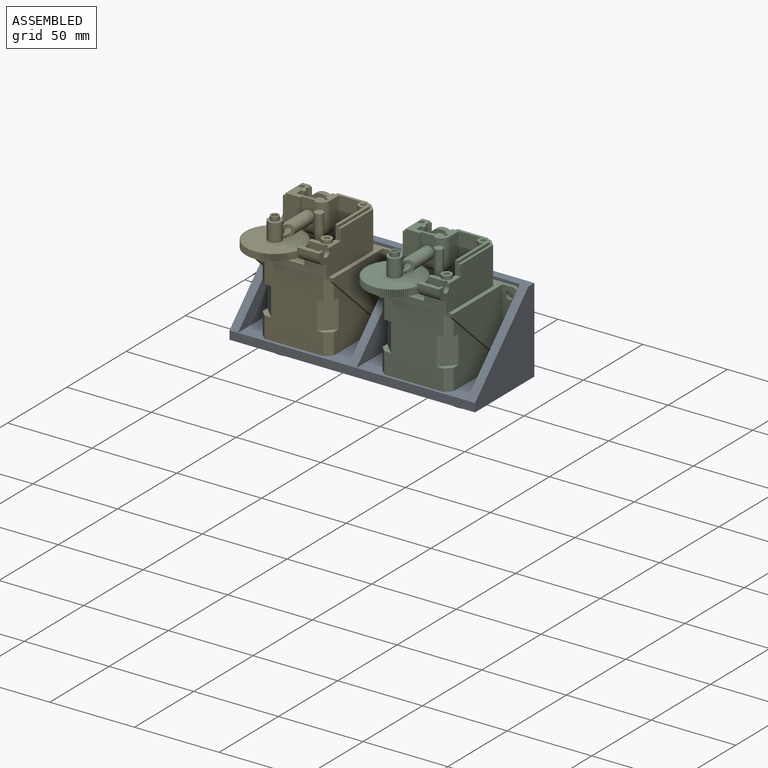
[diagram: assembled view]
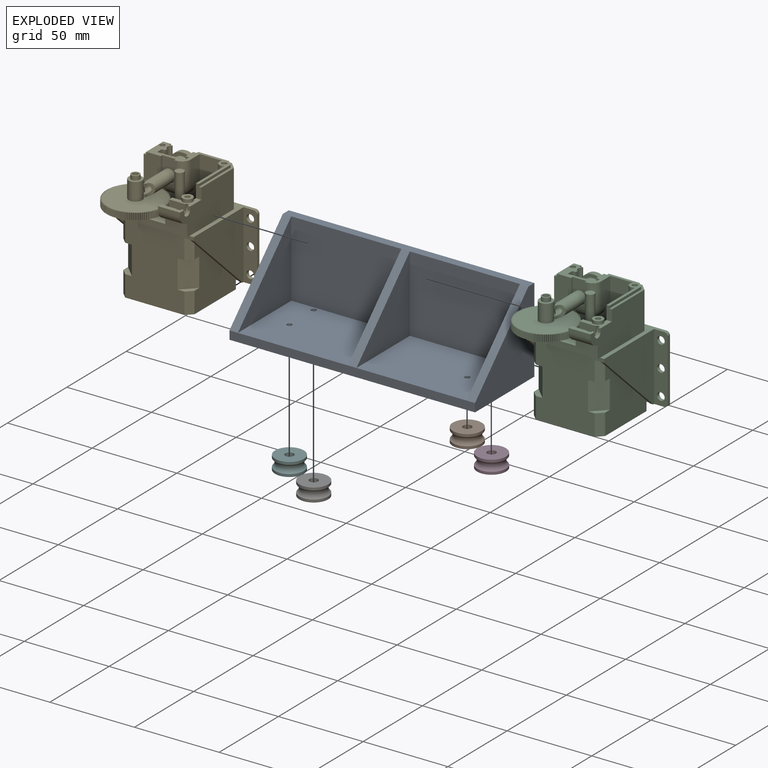
[diagram: exploded view]
GUIDED TOUR — MATED ASSEMBLY WITH SUBASSEMBLIES (Onshape document d7634deb3688b2f1b985ae3a, AutoMate assembly d7634deb3688b2f1b985ae3a_b9d960c2a4b070388d942541_c67b8e5b1b99cf756e7b9374_default)

This assembly has 17 component occurrences arranged in 7 top-level units: 5 individual components plus 2 subassemblies (S0, S1). The tour has two levels: first the top level, where each subassembly is treated as one rigid unit; then each subassembly is toured internally in its own section (nesting deeper than one subassembly level is flattened into its subassembly's section).

Components are labeled P0..P16 across the whole record; subassembly units are labeled S0..S1. A mate is a constraint between two units; its type names the relative motion it leaves free:
  CYLINDRICAL — leaves both rotation about and translation along the listed axis free,
  PARALLEL — keeps the two listed directions parallel,
  PLANAR — leaves sliding in the plane through the listed point (normal = the listed direction) and rotation about that normal free.
Axis/direction vectors are unit vectors and 'through' points are millimeter coordinates, both in the assembly's world frame.

TOP-LEVEL MATES (between units; each subassembly's internal mates are listed in its own section)
  1. CYLINDRICAL "Cylindrical 1": P1 <-> P0, axis (0.000, 0.000, 1.000) through (79.17, -160.97, 48.80) mm
  2. CYLINDRICAL "Cylindrical 4": P16 <-> P0, axis (0.000, 0.000, 1.000) through (-25.83, -140.51, 48.80) mm
  3. PLANAR "Planar 3": P1 <-> P0, direction (0.000, 0.000, 1.000) through (79.17, -160.97, 48.80) mm
  4. CYLINDRICAL "Cylindrical 3": P11 <-> P0, axis (0.000, 0.000, 1.000) through (-25.83, -160.97, 43.92) mm
  5. CYLINDRICAL "Cylindrical 2": P3 <-> P0, axis (0.000, 0.000, 1.000) through (79.17, -140.51, 48.80) mm
  6. PLANAR "Planar 2": P11 <-> P0, direction (0.000, 0.000, 1.000) through (-25.83, -160.97, 48.80) mm
  7. PLANAR "Planar 4": P0 <-> P3, direction (0.000, 0.000, -1.000) through (26.67, -158.09, 48.80) mm
  8. PLANAR "Planar 1": P16 <-> P0, direction (0.000, 0.000, 1.000) through (-25.83, -140.51, 48.80) mm

TOP-LEVEL ASSEMBLY ORDER
  1. P0 — the base component [order heuristic]
  2. P1 — core [order heuristic]
  3. P3 — core [order heuristic]
  4. P11 — core [order heuristic]
  5. P16 — core [order heuristic]
  6. S1 [order verified]
  7. S0 [order verified]
Order-tag legend:
  [order verified] — this step's position reverses a verified removal order: the component was checked to insert without passing through the ones already placed.
  [order heuristic] — the first 5 components form the assembly's core: parts whose collision-free extraction could not be verified, listed in mate-graph order.

Of the 17 component occurrences, 17 carry the full construction recipe — the FeatureScript program that regenerates the part's solid from scratch; the rest are supplied as boundary geometry only. Each toured unit is shown spotlighted twice — assembled, then exploded with a leader line back to its socket (green = recipe-attached component, orange = geometry-only, blue = subassembly unit; the rest desaturated gray).
NOTE — document 3 of 4 of this assembly tour. The two overview renders and the header above are repeated from document 1; the component sections below continue where the previous document stopped.
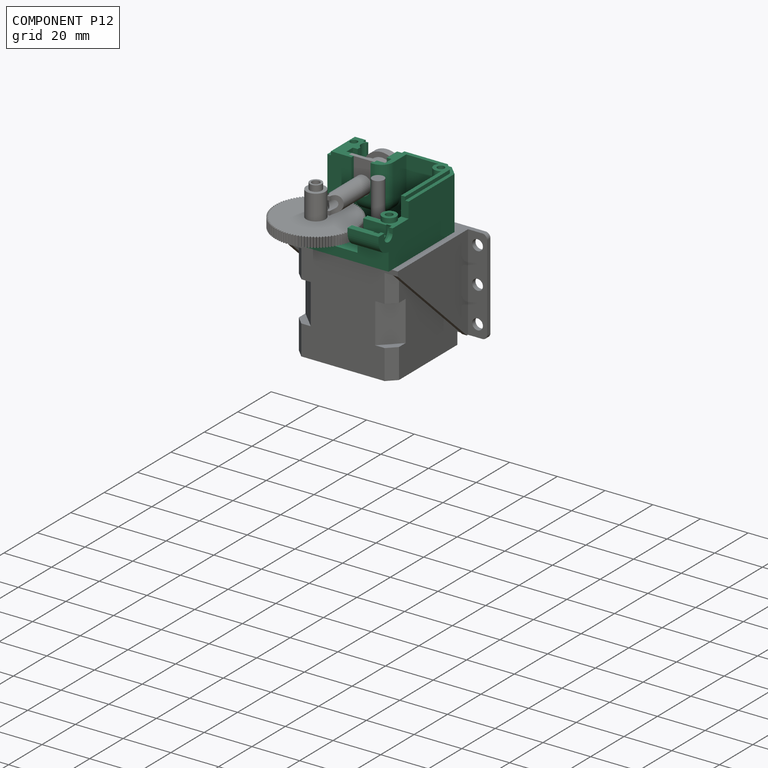
[diagram: component P12 — assembled]
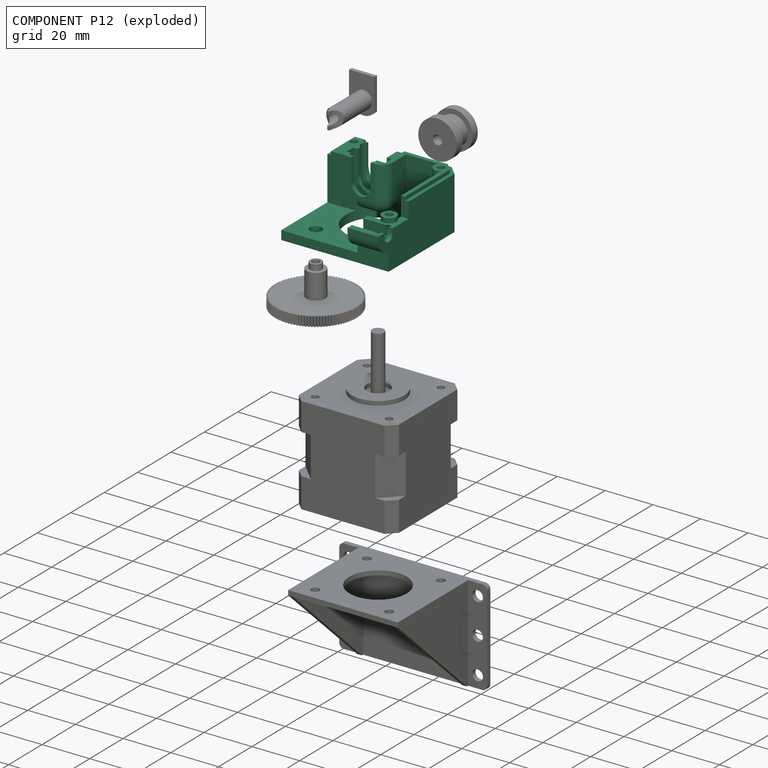
[diagram: component P12 — exploded]
COMPONENT P12 — recipe-attached (CADFS 00519380, mesh-verified: the recipe's output STEP matches this component's geometry to below the mesh-comparison resolution (tessellation chordal tolerance ~0.106 mm)).
Held by: CYLINDRICAL mate "Cylindrical 2" to P4; PLANAR mate "Planar 2" to P5; PLANAR mate "Planar 2" to P4; CYLINDRICAL mate "Cylindrical 3" to P6; PLANAR mate "Planar 1" to P8; CYLINDRICAL mate "Cylindrical 2" to P5; CYLINDRICAL mate "Cylindrical 1" to P8; PARALLEL mate "Parallel 3" to P5; PLANAR mate "Planar 3" to P6; PLANAR mate "Planar 2" to P5; PARALLEL mate "Parallel 3" to P5; CYLINDRICAL mate "Cylindrical 2" to P4; PLANAR mate "Planar 3" to P6; CYLINDRICAL mate "Cylindrical 1" to P8; CYLINDRICAL mate "Cylindrical 3" to P6; PLANAR mate "Planar 1" to P8; PLANAR mate "Planar 2" to P4; CYLINDRICAL mate "Cylindrical 2" to P5.
Construction recipe (FeatureScript — the CAD program that rebuilds this solid; sketch coordinates are in the units given by the * unit suffixes, e.g. mm):

FeatureScript 1511;
import(path : "onshape/std/geometry.fs", version : "1511.0");
import(path : "onshape/std/common.fs", version : "1511.0");
const mm = millimeter;
const VERTEX = EntityType.VERTEX;
const EDGE = EntityType.EDGE;
const FACE = EntityType.FACE;
const BODY = EntityType.BODY;
function v(x, y){return vector(x, y);}
function OD(order){return orderDisambiguation(order);}
function OSD(set){return originalSetDisambiguation(set);}
function TD(topology){return topologyDisambiguation(topology);}
function TDD(query){return trueDependencyDisambiguation(query);}
function sQuery(a, b, c) {return sketchEntityQuery(a, b, c);}

annotation { "Feature Type Name" : "Feature", "Feature Type Description" : "" }
export const myFeature = defineFeature(function(context is Context, id is Id, definition is map)
    precondition{}
    {
        {
            var Q0;
            Q0=qCreatedBy(makeId("Top.planeOp"),FACE);
            var sketch = newSketch(context, id + "F0", { "sketchPlane" : qUnion([Q0])});
            skLineSegment(sketch, "E0.bottom", {"start": v(0, 0) * mm, "end": v(45, 0) * mm});
            skLineSegment(sketch, "E0.top", {"start": v(0, 43.5) * mm, "end": v(45, 43.5) * mm});
            skLineSegment(sketch, "E0.left", {"start": v(0, 0) * mm, "end": v(0, 43.5) * mm});
            skLineSegment(sketch, "E0.right", {"start": v(45, 0) * mm, "end": v(45, 43.5) * mm});
            skCircle(sketch, "E1", {"center": v(35.75, 36) * mm, "radius": 2.5 * mm});
            skCircle(sketch, "E2", {"center": v(5, 36) * mm, "radius": 1.5 * mm});
            skCircle(sketch, "E3", {"center": v(5, 5) * mm, "radius": 1.5 * mm});
            skCircle(sketch, "E4", {"center": v(35.5, 5) * mm, "radius": 1.5 * mm});
            skCircle(sketch, "E5", {"center": v(41.5, 5) * mm, "radius": 1.5 * mm});
            skCircle(sketch, "E6", {"center": v(20.5, 20.5) * mm, "radius": 13.5 * mm});
            skSolve(sketch);
        }
        {
            var Q0;
            Q0=makeQuery(id+"F0.imprint","IMPRINT",FACE,{"disambiguationData":[TD([[makeQuery(id+"F0.imprint","IMPRINT",EDGE,{"derivedFrom":sQuery(id+"F0.wireOp",EDGE,"E0.bottom")}),1.0]])]});
            extrude(context, id + "F1", {"entities" : qUnion([Q0]), "depth" : 3.75 * mm, "offsetDistance" : 25 * mm});
        }
        {
            var Q0;
            Q0=makeQuery(id+"F1.opExtrude","CAP_FACE",FACE,{"disambiguationData":[OSD([sQuery(id+"F0.wireOp",EDGE,"E0.bottom"),sQuery(id+"F0.wireOp",EDGE,"E0.top"),sQuery(id+"F0.wireOp",EDGE,"E0.left"),sQuery(id+"F0.wireOp",EDGE,"E0.right"),sQuery(id+"F0.wireOp",EDGE,"E1"),sQuery(id+"F0.wireOp",EDGE,"E2"),sQuery(id+"F0.wireOp",EDGE,"E3"),sQuery(id+"F0.wireOp",EDGE,"E4"),sQuery(id+"F0.wireOp",EDGE,"E5"),sQuery(id+"F0.wireOp",EDGE,"E6")])],"isStart":false});
            var sketch = newSketch(context, id + "F2", { "sketchPlane" : qUnion([Q0])});
            skLineSegment(sketch, "E7.0.1", {"start": v(0, 43.5) * mm, "end": v(0, 0) * mm});
            skCircle(sketch, "E8", {"center": v(41.5, 5) * mm, "radius": 1.5 * mm});
            skCircle(sketch, "E9", {"center": v(35.5, 5) * mm, "radius": 1.5 * mm});
            skCircle(sketch, "E10", {"center": v(5, 5) * mm, "radius": 1.5 * mm});
            skCircle(sketch, "E11", {"center": v(5, 36) * mm, "radius": 1.5 * mm});
            skLineSegment(sketch, "E12", {"start": v(0, 43.5) * mm, "end": v(13, 43.5) * mm});
            skLineSegment(sketch, "E13", {"start": v(0, 0) * mm, "end": v(0, 43.5) * mm});
            skLineSegment(sketch, "E14", {"start": v(0, 0) * mm, "end": v(45, 0) * mm});
            skLineSegment(sketch, "E15", {"start": v(45, 0) * mm, "end": v(45, 15.9) * mm});
            skArc(sketch, "E16", {"start": v(3.15, 33.64) * mm, "mid": v(6.97, 33.73) * mm, "end": v(7.6, 37.5) * mm});
            skLineSegment(sketch, "E17", {"start": v(13, 37.5) * mm, "end": v(13, 43.5) * mm});
            skLineSegment(sketch, "E18", {"start": v(7.36, 3.15) * mm, "end": v(20.8, 3.15) * mm});
            skLineSegment(sketch, "E19", {"start": v(45, 15.9) * mm, "end": v(20.8, 15.9) * mm});
            skLineSegment(sketch, "E20", {"start": v(20.8, 15.9) * mm, "end": v(20.8, 3.15) * mm});
            skPoint(sketch, "E21.orphan", {"position": v(45, 43.5) * mm});
            skLineSegment(sketch, "E22.trimOffspring", {"start": v(7.6, 37.5) * mm, "end": v(13, 37.5) * mm});
            skLineSegment(sketch, "E23.trimOffspring", {"start": v(3.15, 33.64) * mm, "end": v(3.15, 7.36) * mm});
            skArc(sketch, "E24.trimOffspring", {"start": v(7.36, 3.15) * mm, "mid": v(7.12, 7.12) * mm, "end": v(3.15, 7.36) * mm});
            skPoint(sketch, "E7.0.2.end.orphan", {"position": v(45, 0) * mm});
            skSolve(sketch);
        }
        {
            var Q0;
            Q0 = qSketchRegion(id + "F2", true);
            extrude(context, id + "F3", {"entities" : qUnion([Q0]), "operationType" : NewBodyOperationType.ADD, "depth" : (23.5 - 3.75) * mm, "offsetDistance" : 25 * mm});
        }
        {
            var Q0;
            Q0=makeQuery(id+"F3.boolean.opBoolean","MERGE",EDGE,{"derivedFrom":[makeQuery(id+"F1.opExtrude","SWEPT_EDGE",EDGE,{"disambiguationData":[OSD([sQuery(id+"F0.wireOp",EDGE,"E0.bottom"),sQuery(id+"F0.wireOp",EDGE,"E0.left")])]}),makeQuery(id+"F3.opExtrude","SWEPT_EDGE",EDGE,{"disambiguationData":[OSD([sQuery(id+"F2.wireOp",EDGE,"E13"),sQuery(id+"F2.wireOp",EDGE,"E14")])]})]});
            chamfer(context, id + "F4", {"entities" : qUnion([Q0]), "width" : 4 * mm, "tangentPropagation" : true});
        }
        {
            var Q0;
            Q0=makeQuery(id+"F3.boolean.opBoolean","MERGE",FACE,{"derivedFrom":[makeQuery(id+"F1.opExtrude","SWEPT_FACE",FACE,{"disambiguationData":[OSD([sQuery(id+"F0.wireOp",EDGE,"E0.left")])]}),makeQuery(id+"F3.opExtrude","SWEPT_FACE",FACE,{"disambiguationData":[OSD([sQuery(id+"F2.wireOp",EDGE,"E13")])]})]});
            var sketch = newSketch(context, id + "F5", { "sketchPlane" : qUnion([Q0])});
            skLineSegment(sketch, "E25.bottom", {"start": v(-43.5, 23.5) * mm, "end": v(-31.5, 23.5) * mm});
            skLineSegment(sketch, "E25.top", {"start": v(-43.5, 15.5) * mm, "end": v(-31.5, 15.5) * mm});
            skLineSegment(sketch, "E25.left", {"start": v(-43.5, 23.5) * mm, "end": v(-43.5, 15.5) * mm});
            skLineSegment(sketch, "E25.right", {"start": v(-31.5, 23.5) * mm, "end": v(-31.5, 15.5) * mm});
            skSolve(sketch);
        }
        {
            var Q0;
            Q0=makeQuery(id+"F5.imprint","IMPRINT",FACE,{"disambiguationData":[TD([[makeQuery(id+"F5.imprint","IMPRINT",EDGE,{"derivedFrom":sQuery(id+"F5.wireOp",EDGE,"E25.bottom")}),1.0]])]});
            extrude(context, id + "F6", {"entities" : qUnion([Q0]), "operationType" : NewBodyOperationType.REMOVE, "endBound" : BoundingType.THROUGH_ALL, "oppositeDirection" : true, "depth" : 25 * mm, "offsetDistance" : 25 * mm});
        }
        {
            var Q0;
            Q0=makeQuery(id+"F3.boolean.opBoolean","MERGE",FACE,{"derivedFrom":[makeQuery(id+"F1.opExtrude","SWEPT_FACE",FACE,{"disambiguationData":[OSD([sQuery(id+"F0.wireOp",EDGE,"E0.left")])]}),makeQuery(id+"F3.opExtrude","SWEPT_FACE",FACE,{"disambiguationData":[OSD([sQuery(id+"F2.wireOp",EDGE,"E13")])]})]});
            var sketch = newSketch(context, id + "F7", { "sketchPlane" : qUnion([Q0])});
            skArc(sketch, "E26", {"start": v(-49.5, 13.5) * mm, "mid": v(-47.74, 9.26) * mm, "end": v(-43.5, 7.5) * mm});
            skLineSegment(sketch, "E27", {"start": v(-49.5, 13.5) * mm, "end": v(-49.5, 15.5) * mm});
            skLineSegment(sketch, "E28", {"start": v(-43.5, 15.5) * mm, "end": v(-49.5, 15.5) * mm});
            skLineSegment(sketch, "E29.bottom", {"start": v(-43.5, 15.5) * mm, "end": v(-40.04, 15.5) * mm});
            skLineSegment(sketch, "E29.top", {"start": v(-43.5, 7.5) * mm, "end": v(-40.04, 7.5) * mm});
            skLineSegment(sketch, "E29.right", {"start": v(-40.04, 15.5) * mm, "end": v(-40.04, 7.5) * mm});
            skSolve(sketch);
        }
        {
            var Q0;
            Q0 = qSketchRegion(id + "F7", true);
            var Q1;
            Q1=makeQuery(id+"F3.opExtrude","SWEPT_FACE",FACE,{"disambiguationData":[OSD([sQuery(id+"F2.wireOp",EDGE,"E17")])]});
            extrude(context, id + "F8", {"entities" : qUnion([Q0]), "operationType" : NewBodyOperationType.ADD, "endBound" : BoundingType.UP_TO_SURFACE, "oppositeDirection" : true, "depth" : 25 * mm, "endBoundEntityFace" : qUnion([Q1]), "offsetDistance" : 25 * mm});
        }
        {
            var Q0;
            Q0=makeQuery(id+"F8.boolean.opBoolean","MERGE",FACE,{"derivedFrom":[makeQuery(id+"F3.boolean.opBoolean","MERGE",FACE,{"derivedFrom":[makeQuery(id+"F1.opExtrude","SWEPT_FACE",FACE,{"disambiguationData":[OSD([sQuery(id+"F0.wireOp",EDGE,"E0.left")])]}),makeQuery(id+"F3.opExtrude","SWEPT_FACE",FACE,{"disambiguationData":[OSD([sQuery(id+"F2.wireOp",EDGE,"E13")])]})]}),makeQuery(id+"F8.opExtrude","CAP_FACE",FACE,{"disambiguationData":[OSD([sQuery(id+"F7.wireOp",EDGE,"E26"),sQuery(id+"F7.wireOp",EDGE,"E27"),sQuery(id+"F7.wireOp",EDGE,"E28"),sQuery(id+"F7.wireOp",EDGE,"E29.bottom"),sQuery(id+"F7.wireOp",EDGE,"E29.top"),sQuery(id+"F7.wireOp",EDGE,"E29.right")])],"isStart":true})]});
            var sketch = newSketch(context, id + "F9", { "sketchPlane" : qUnion([Q0])});
            skArc(sketch, "E30", {"start": v(-46, 13.85) * mm, "mid": v(-43.4, 11.2) * mm, "end": v(-41.03, 14.07) * mm});
            skLineSegment(sketch, "E31", {"start": v(-46, 15.5) * mm, "end": v(-46, 13.55) * mm});
            skLineSegment(sketch, "E32", {"start": v(-41.03, 15.5) * mm, "end": v(-41.03, 13.33) * mm});
            skLineSegment(sketch, "E33", {"start": v(-46, 15.5) * mm, "end": v(-41.03, 15.5) * mm});
            skSolve(sketch);
        }
        {
            var Q0;
            {var subQ3=sQuery(id+"F9.wireOp",EDGE,"E33");Q0=makeQuery(id+"F9.imprint","IMPRINT",FACE,{"disambiguationData":[TD([[makeQuery(id+"F9.imprint","IMPRINT",EDGE,{"derivedFrom":subQ3}),-1.0]])]});}
            extrude(context, id + "F10", {"entities" : qUnion([Q0]), "operationType" : NewBodyOperationType.REMOVE, "endBound" : BoundingType.THROUGH_ALL, "oppositeDirection" : true, "depth" : 25 * mm, "offsetDistance" : 25 * mm});
        }
        {
            var Q0;
            {var subQ1=sQuery(id+"F7.wireOp",EDGE,"E29.bottom");var subQ2=sQuery(id+"F7.wireOp",EDGE,"E28");Q0=makeQuery(id+"F10.boolean.opBoolean","SPLIT",FACE,{"disambiguationData":[TD([makeQuery(id+"F1.opExtrude","SWEPT_FACE",FACE,{"disambiguationData":[OSD([sQuery(id+"F0.wireOp",EDGE,"E2")])]})])],"derivedFrom":makeQuery(id+"F8.boolean.opBoolean","MERGE",FACE,{"derivedFrom":[makeQuery(id+"F6.boolean.opBoolean","COPY",FACE,{"derivedFrom":makeQuery(id+"F6.opExtrude","SWEPT_FACE",FACE,{"disambiguationData":[OSD([sQuery(id+"F5.wireOp",EDGE,"E25.top")])]})}),makeQuery(id+"F8.opExtrude","SWEPT_FACE",FACE,{"disambiguationData":[OSD([subQ2,subQ1])]})]})});}
            var sketch = newSketch(context, id + "F11", { "sketchPlane" : qUnion([Q0])});
            skCircle(sketch, "E34.0", {"center": v(5, 36) * mm, "radius": 1.5 * mm});
            skCircle(sketch, "E35", {"center": v(5, 36) * mm, "radius": 3 * mm});
            skSolve(sketch);
        }
        {
            var Q0;
            Q0 = qSketchRegion(id + "F11", true);
            extrude(context, id + "F12", {"entities" : qUnion([Q0]), "operationType" : NewBodyOperationType.ADD, "depth" : 2 * mm, "offsetDistance" : 25 * mm});
        }
        {
            var Q0;
            {var subQ0=sQuery(id+"F2.wireOp",EDGE,"E17");Q0=makeQuery(id+"F8.boolean.opBoolean","MERGE",FACE,{"derivedFrom":[makeQuery(id+"F3.opExtrude","SWEPT_FACE",FACE,{"disambiguationData":[OSD([subQ0])]}),makeQuery(id+"F8.opExtrude","CAP_FACE",FACE,{"disambiguationData":[OSD([subQ0])],"isStart":false})]});}
            var sketch = newSketch(context, id + "F13", { "sketchPlane" : qUnion([Q0])});
            skLineSegment(sketch, "E36", {"start": v(40.1, 15.5) * mm, "end": v(40.1, 11.5) * mm});
            skLineSegment(sketch, "E37", {"start": v(40.1, 11.5) * mm, "end": v(43.5, 9.4) * mm});
            skLineSegment(sketch, "E38", {"start": v(43.5, 9.4) * mm, "end": v(46.9, 11.5) * mm});
            skLineSegment(sketch, "E39", {"start": v(46.9, 11.5) * mm, "end": v(46.9, 15.5) * mm});
            skLineSegment(sketch, "E40", {"start": v(46.9, 15.5) * mm, "end": v(40.1, 15.5) * mm});
            skSolve(sketch);
        }
        {
            var Q0;
            Q0 = qSketchRegion(id + "F13", true);
            extrude(context, id + "F14", {"entities" : qUnion([Q0]), "operationType" : NewBodyOperationType.REMOVE, "oppositeDirection" : true, "depth" : 11.5 * mm, "offsetDistance" : 25 * mm});
        }
        {
            var Q0;
            Q0=makeQuery(id+"F14.boolean.opBoolean","COPY",FACE,{"derivedFrom":makeQuery(id+"F14.opExtrude","CAP_FACE",FACE,{"disambiguationData":[OSD([sQuery(id+"F13.wireOp",EDGE,"E36"),sQuery(id+"F13.wireOp",EDGE,"E37"),sQuery(id+"F13.wireOp",EDGE,"E38"),sQuery(id+"F13.wireOp",EDGE,"E39"),sQuery(id+"F13.wireOp",EDGE,"E40")])],"isStart":false})});
            var sketch = newSketch(context, id + "F15", { "sketchPlane" : qUnion([Q0])});
            skCircle(sketch, "E41", {"center": v(43.5, 13.7) * mm, "radius": 4.38 * mm});
            skSolve(sketch);
        }
        {
            var Q0;
            Q0 = qSketchRegion(id + "F15", true);
            extrude(context, id + "F16", {"entities" : qUnion([Q0]), "operationType" : NewBodyOperationType.REMOVE, "depth" : 2 * mm, "offsetDistance" : 25 * mm});
        }
        {
            var Q0;
            Q0=makeQuery(id+"F3.opExtrude","CAP_FACE",FACE,{"disambiguationData":[OSD([sQuery(id+"F2.wireOp",EDGE,"E8"),sQuery(id+"F2.wireOp",EDGE,"E9"),sQuery(id+"F2.wireOp",EDGE,"E10"),sQuery(id+"F2.wireOp",EDGE,"E11"),sQuery(id+"F2.wireOp",EDGE,"E12"),sQuery(id+"F2.wireOp",EDGE,"E13"),sQuery(id+"F2.wireOp",EDGE,"E14"),sQuery(id+"F2.wireOp",EDGE,"E15"),sQuery(id+"F2.wireOp",EDGE,"E16"),sQuery(id+"F2.wireOp",EDGE,"E17"),sQuery(id+"F2.wireOp",EDGE,"E18"),sQuery(id+"F2.wireOp",EDGE,"E19"),sQuery(id+"F2.wireOp",EDGE,"E20"),sQuery(id+"F2.wireOp",EDGE,"E22.trimOffspring"),sQuery(id+"F2.wireOp",EDGE,"E23.trimOffspring"),sQuery(id+"F2.wireOp",EDGE,"E24.trimOffspring")])],"isStart":false});
            var sketch = newSketch(context, id + "F17", { "sketchPlane" : qUnion([Q0])});
            skLineSegment(sketch, "E42", {"start": v(1.5, 31.5) * mm, "end": v(0, 31.5) * mm});
            skLineSegment(sketch, "E43", {"start": v(0, 4) * mm, "end": v(0, 31.5) * mm});
            skLineSegment(sketch, "E44", {"start": v(0, 4) * mm, "end": v(4, 0) * mm});
            skLineSegment(sketch, "E45", {"start": v(4, 0) * mm, "end": v(45, 0) * mm});
            skLineSegment(sketch, "E46", {"start": v(45, 0) * mm, "end": v(45, 15.9) * mm});
            skLineSegment(sketch, "E47", {"start": v(45, 15.9) * mm, "end": v(43.5, 15.9) * mm});
            skLineSegment(sketch, "E48", {"start": v(1.5, 31.5) * mm, "end": v(1.5, 4.62) * mm});
            skLineSegment(sketch, "E49", {"start": v(1.5, 4.62) * mm, "end": v(4.62, 1.5) * mm});
            skLineSegment(sketch, "E50", {"start": v(4.62, 1.5) * mm, "end": v(43.5, 1.5) * mm});
            skLineSegment(sketch, "E51", {"start": v(43.5, 1.5) * mm, "end": v(43.5, 15.9) * mm});
            skSolve(sketch);
        }
        {
            var Q0;
            Q0 = qSketchRegion(id + "F17", true);
            extrude(context, id + "F18", {"entities" : qUnion([Q0]), "operationType" : NewBodyOperationType.REMOVE, "oppositeDirection" : true, "depth" : 1.5 * mm, "offsetDistance" : 25 * mm});
        }
        {
            var Q0;
            Q0=makeQuery(id+"F3.boolean.opBoolean","MERGE",FACE,{"derivedFrom":[makeQuery(id+"F1.opExtrude","SWEPT_FACE",FACE,{"disambiguationData":[OSD([sQuery(id+"F0.wireOp",EDGE,"E0.bottom")])]}),makeQuery(id+"F3.opExtrude","SWEPT_FACE",FACE,{"disambiguationData":[OSD([sQuery(id+"F2.wireOp",EDGE,"E14")])]})]});
            var sketch = newSketch(context, id + "F19", { "sketchPlane" : qUnion([Q0])});
            skArc(sketch, "E52", {"start": v(22.8, 13.7) * mm, "mid": v(30.9, 5.6) * mm, "end": v(39, 13.7) * mm});
            skLineSegment(sketch, "E53", {"start": v(22.8, 13.7) * mm, "end": v(22.8, 23.94) * mm});
            skLineSegment(sketch, "E54", {"start": v(22.8, 23.94) * mm, "end": v(39, 23.94) * mm});
            skLineSegment(sketch, "E55", {"start": v(39, 23.94) * mm, "end": v(39, 13.7) * mm});
            skSolve(sketch);
        }
        {
            var Q0;
            {var subQ2=sQuery(id+"F19.wireOp",EDGE,"E52");Q0=makeQuery(id+"F19.imprint","IMPRINT",FACE,{"disambiguationData":[TD([[makeQuery(id+"F19.imprint","IMPRINT",EDGE,{"derivedFrom":subQ2}),-1.0]])]});}
            var sketch = newSketch(context, id + "F20", { "sketchPlane" : qUnion([Q0])});
            skArc(sketch, "E56", {"start": v(26.9, 13.7) * mm, "mid": v(30.9, 9.7) * mm, "end": v(34.9, 13.7) * mm});
            skLineSegment(sketch, "E57", {"start": v(26.9, 13.7) * mm, "end": v(26.9, 27) * mm});
            skLineSegment(sketch, "E58", {"start": v(26.9, 27) * mm, "end": v(34.9, 27) * mm});
            skLineSegment(sketch, "E59", {"start": v(34.9, 27) * mm, "end": v(34.9, 13.7) * mm});
            skSolve(sketch);
        }
        {
            var Q0;
            Q0 = qSketchRegion(id + "F20", true);
            extrude(context, id + "F21", {"entities" : qUnion([Q0]), "operationType" : NewBodyOperationType.REMOVE, "endBound" : BoundingType.THROUGH_ALL, "oppositeDirection" : true, "depth" : 25 * mm, "offsetDistance" : 25 * mm});
        }
        {
            var Q0;
            Q0 = qSketchRegion(id + "F19", true);
            extrude(context, id + "F22", {"entities" : qUnion([Q0]), "operationType" : NewBodyOperationType.REMOVE, "oppositeDirection" : true, "depth" : (16 - 3) * mm, "offsetDistance" : 25 * mm, "hasSecondDirection" : true, "secondDirectionOppositeDirection" : true, "secondDirectionDepth" : (13 - 3.8) * mm});
        }
        {
            var Q0;
            Q0 = qSketchRegion(id + "F19", true);
            extrude(context, id + "F23", {"entities" : qUnion([Q0]), "operationType" : NewBodyOperationType.REMOVE, "oppositeDirection" : true, "depth" : 3 * mm, "offsetDistance" : 25 * mm});
        }
        {
            var Q0;
            Q0=makeQuery(id+"F3.opExtrude","SWEPT_EDGE",EDGE,{"disambiguationData":[OSD([sQuery(id+"F2.wireOp",EDGE,"E19"),sQuery(id+"F2.wireOp",EDGE,"E20")])]});
            var Q1;
            {var subQ0=sQuery(id+"F2.wireOp",EDGE,"E19");Q1=makeQuery(id+"F3.boolean.opBoolean","SPLIT",EDGE,{"disambiguationData":[topologyDisambiguationEdgeConnected([makeQuery(id+"F3.opExtrude","CAP_FACE",FACE,{"disambiguationData":[OSD([sQuery(id+"F2.wireOp",EDGE,"E8"),sQuery(id+"F2.wireOp",EDGE,"E9"),sQuery(id+"F2.wireOp",EDGE,"E10"),sQuery(id+"F2.wireOp",EDGE,"E11"),sQuery(id+"F2.wireOp",EDGE,"E12"),sQuery(id+"F2.wireOp",EDGE,"E13"),sQuery(id+"F2.wireOp",EDGE,"E14"),sQuery(id+"F2.wireOp",EDGE,"E15"),sQuery(id+"F2.wireOp",EDGE,"E16"),sQuery(id+"F2.wireOp",EDGE,"E17"),sQuery(id+"F2.wireOp",EDGE,"E18"),subQ0,sQuery(id+"F2.wireOp",EDGE,"E20"),sQuery(id+"F2.wireOp",EDGE,"E22.trimOffspring"),sQuery(id+"F2.wireOp",EDGE,"E23.trimOffspring"),sQuery(id+"F2.wireOp",EDGE,"E24.trimOffspring")])],"isStart":true})])],"derivedFrom":makeQuery(id+"F3.opExtrude","CAP_EDGE",EDGE,{"disambiguationData":[OSD([subQ0])],"isStart":true})});}
            var Q2;
            {var subQ0=sQuery(id+"F2.wireOp",EDGE,"E20");Q2=makeQuery(id+"F3.boolean.opBoolean","SPLIT",EDGE,{"disambiguationData":[topologyDisambiguationEdgeConnected([makeQuery(id+"F3.opExtrude","CAP_FACE",FACE,{"disambiguationData":[OSD([sQuery(id+"F2.wireOp",EDGE,"E8"),sQuery(id+"F2.wireOp",EDGE,"E9"),sQuery(id+"F2.wireOp",EDGE,"E10"),sQuery(id+"F2.wireOp",EDGE,"E11"),sQuery(id+"F2.wireOp",EDGE,"E12"),sQuery(id+"F2.wireOp",EDGE,"E13"),sQuery(id+"F2.wireOp",EDGE,"E14"),sQuery(id+"F2.wireOp",EDGE,"E15"),sQuery(id+"F2.wireOp",EDGE,"E16"),sQuery(id+"F2.wireOp",EDGE,"E17"),sQuery(id+"F2.wireOp",EDGE,"E18"),sQuery(id+"F2.wireOp",EDGE,"E19"),subQ0,sQuery(id+"F2.wireOp",EDGE,"E22.trimOffspring"),sQuery(id+"F2.wireOp",EDGE,"E23.trimOffspring"),sQuery(id+"F2.wireOp",EDGE,"E24.trimOffspring")])],"isStart":true})])],"derivedFrom":makeQuery(id+"F3.opExtrude","CAP_EDGE",EDGE,{"disambiguationData":[OSD([subQ0])],"isStart":true})});}
            fillet(context, id + "F24", {"entities" : qUnion([Q0, Q1, Q2]), "radius" : 5 * mm, "tangentPropagation" : true, "allowEdgeOverflow" : false});
        }
        {
            var Q0;
            Q0=makeQuery(id+"F3.boolean.opBoolean","MERGE",FACE,{"derivedFrom":[makeQuery(id+"F1.opExtrude","SWEPT_FACE",FACE,{"disambiguationData":[OSD([sQuery(id+"F0.wireOp",EDGE,"E0.bottom")])]}),makeQuery(id+"F3.opExtrude","SWEPT_FACE",FACE,{"disambiguationData":[OSD([sQuery(id+"F2.wireOp",EDGE,"E14")])]})]});
            var sketch = newSketch(context, id + "F25", { "sketchPlane" : qUnion([Q0])});
            skArc(sketch, "E60", {"start": v(24.8, 13.7) * mm, "mid": v(30.9, 7.6) * mm, "end": v(37, 13.7) * mm});
            skLineSegment(sketch, "E61", {"start": v(24.8, 13.7) * mm, "end": v(24.8, 24.84) * mm});
            skLineSegment(sketch, "E62", {"start": v(24.8, 24.84) * mm, "end": v(37, 24.84) * mm});
            skLineSegment(sketch, "E63", {"start": v(37, 24.84) * mm, "end": v(37, 13.7) * mm});
            skSolve(sketch);
        }
        {
            var Q0;
            Q0 = qSketchRegion(id + "F25", true);
            var Q1;
            Q1=makeQuery(id+"F22.boolean.opBoolean","COPY",FACE,{"derivedFrom":makeQuery(id+"F22.opExtrude","CAP_FACE",FACE,{"disambiguationData":[OSD([sQuery(id+"F19.wireOp",EDGE,"E52"),sQuery(id+"F19.wireOp",EDGE,"E53"),sQuery(id+"F19.wireOp",EDGE,"E54"),sQuery(id+"F19.wireOp",EDGE,"E55")])],"isStart":true})});
            extrude(context, id + "F26", {"entities" : qUnion([Q0]), "operationType" : NewBodyOperationType.REMOVE, "endBound" : BoundingType.UP_TO_SURFACE, "oppositeDirection" : true, "depth" : 25 * mm, "endBoundEntityFace" : qUnion([Q1]), "offsetDistance" : 25 * mm});
        }
        {
            var Q0;
            {var subQ0=sQuery(id+"F2.wireOp",EDGE,"E9");var subQ1=sQuery(id+"F2.wireOp",EDGE,"E8");var subQ2=sQuery(id+"F2.wireOp",EDGE,"E19");Q0=makeQuery(id+"F21.boolean.opBoolean","SPLIT",FACE,{"disambiguationData":[TD([makeQuery(id+"F1.opExtrude","SWEPT_FACE",FACE,{"disambiguationData":[OSD([sQuery(id+"F0.wireOp",EDGE,"E4")])]})])],"derivedFrom":makeQuery(id+"F3.opExtrude","CAP_FACE",FACE,{"disambiguationData":[OSD([subQ1,subQ0,sQuery(id+"F2.wireOp",EDGE,"E10"),sQuery(id+"F2.wireOp",EDGE,"E11"),sQuery(id+"F2.wireOp",EDGE,"E12"),sQuery(id+"F2.wireOp",EDGE,"E13"),sQuery(id+"F2.wireOp",EDGE,"E14"),sQuery(id+"F2.wireOp",EDGE,"E15"),sQuery(id+"F2.wireOp",EDGE,"E16"),sQuery(id+"F2.wireOp",EDGE,"E17"),sQuery(id+"F2.wireOp",EDGE,"E18"),subQ2,sQuery(id+"F2.wireOp",EDGE,"E20"),sQuery(id+"F2.wireOp",EDGE,"E22.trimOffspring"),sQuery(id+"F2.wireOp",EDGE,"E23.trimOffspring"),sQuery(id+"F2.wireOp",EDGE,"E24.trimOffspring")])],"isStart":false})});}
            var sketch = newSketch(context, id + "F27", { "sketchPlane" : qUnion([Q0])});
            skCircle(sketch, "E64", {"center": v(35.5, 5) * mm, "radius": 2.88 * mm});
            skSolve(sketch);
        }
        {
            var Q0;
            Q0 = qSketchRegion(id + "F27", true);
            extrude(context, id + "F28", {"entities" : qUnion([Q0]), "operationType" : NewBodyOperationType.REMOVE, "oppositeDirection" : true, "depth" : 21.5 * mm, "offsetDistance" : 25 * mm});
        }
        {
            var Q0;
            Q0=makeQuery(id+"F22.boolean.opBoolean","COPY",FACE,{"derivedFrom":makeQuery(id+"F22.opExtrude","CAP_FACE",FACE,{"disambiguationData":[OSD([sQuery(id+"F19.wireOp",EDGE,"E52"),sQuery(id+"F19.wireOp",EDGE,"E53"),sQuery(id+"F19.wireOp",EDGE,"E54"),sQuery(id+"F19.wireOp",EDGE,"E55")])],"isStart":false})});
            var sketch = newSketch(context, id + "F29", { "sketchPlane" : qUnion([Q0])});
            skArc(sketch, "E65", {"start": v(26.3, 9.85) * mm, "mid": v(33.04, 8.1) * mm, "end": v(36.9, 13.9) * mm});
            skLineSegment(sketch, "E66", {"start": v(36.9, 13.9) * mm, "end": v(36.9, 26.1) * mm});
            skLineSegment(sketch, "E67", {"start": v(36.9, 26.1) * mm, "end": v(26.3, 26.1) * mm});
            skLineSegment(sketch, "E68", {"start": v(26.3, 26.1) * mm, "end": v(26.3, 9.85) * mm});
            skSolve(sketch);
        }
        {
            var Q0;
            Q0 = qSketchRegion(id + "F29", true);
            extrude(context, id + "F30", {"entities" : qUnion([Q0]), "operationType" : NewBodyOperationType.REMOVE, "oppositeDirection" : true, "depth" : 1.5 * mm, "offsetDistance" : 25 * mm});
        }
    });
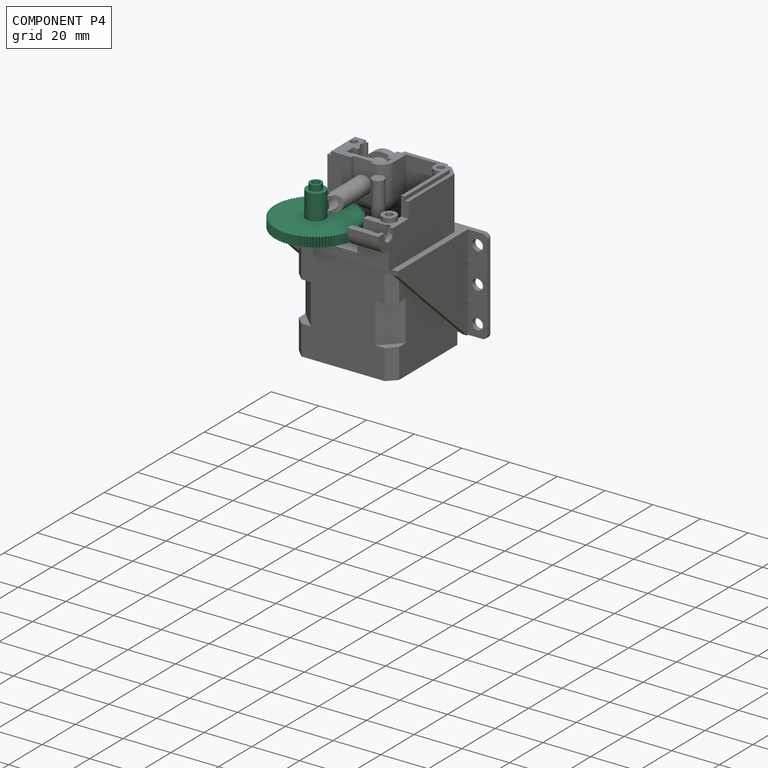
[diagram: component P4 — assembled]
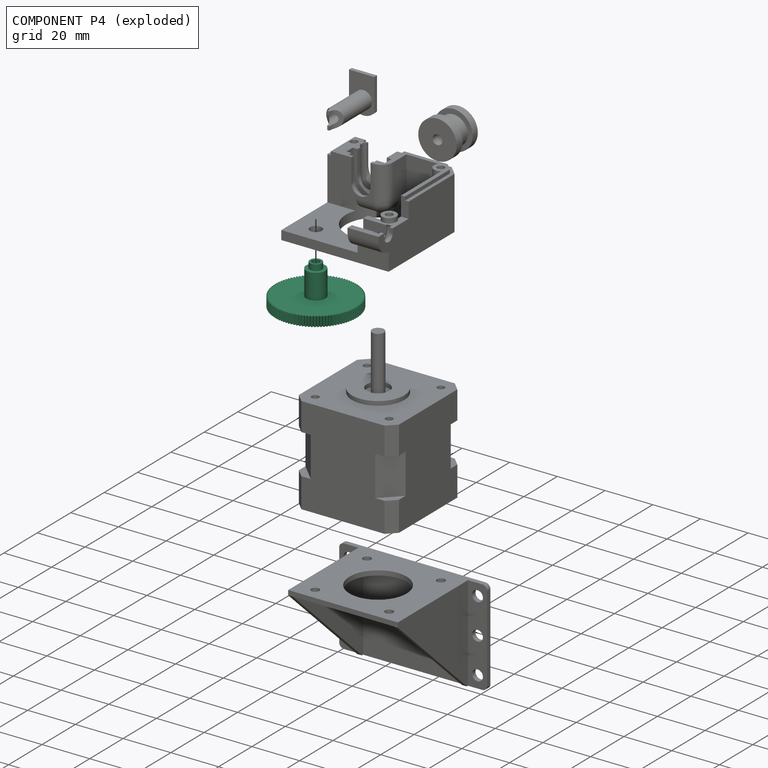
[diagram: component P4 — exploded]
COMPONENT P4 — recipe-attached (CADFS 00519383, mesh-verified: the recipe's output STEP matches this component's geometry to below the mesh-comparison resolution (tessellation chordal tolerance ~0.0784 mm)).
Held by: CYLINDRICAL mate "Cylindrical 2" to P12; PLANAR mate "Planar 2" to P12; PARALLEL mate "Parallel 1" to P6; CYLINDRICAL mate "Cylindrical 2" to P12; PARALLEL mate "Parallel 1" to P6; PLANAR mate "Planar 2" to P12.
Construction recipe (FeatureScript — the CAD program that rebuilds this solid; sketch coordinates are in the units given by the * unit suffixes, e.g. mm):

FeatureScript 1511;
import(path : "onshape/std/geometry.fs", version : "1511.0");
import(path : "onshape/std/common.fs", version : "1511.0");
const mm = millimeter;
const VERTEX = EntityType.VERTEX;
const EDGE = EntityType.EDGE;
const FACE = EntityType.FACE;
const BODY = EntityType.BODY;
function v(x, y){return vector(x, y);}
function OD(order){return orderDisambiguation(order);}
function OSD(set){return originalSetDisambiguation(set);}
function TD(topology){return topologyDisambiguation(topology);}
function TDD(query){return trueDependencyDisambiguation(query);}
function sQuery(a, b, c) {return sketchEntityQuery(a, b, c);}

annotation { "Feature Type Name" : "Feature", "Feature Type Description" : "" }
export const myFeature = defineFeature(function(context is Context, id is Id, definition is map)
    precondition{}
    {
        {
            var Q0;
            Q0=qCreatedBy(makeId("Top.planeOp"),FACE);
            var sketch = newSketch(context, id + "F0", { "sketchPlane" : qUnion([Q0])});
            skCircle(sketch, "E0", {"center": v(0, 0) * mm, "radius": 17 * mm});
            skSolve(sketch);
        }
        {
            var Q0;
            Q0 = qSketchRegion(id + "F0", true);
            extrude(context, id + "F1", {"entities" : qUnion([Q0]), "depth" : 4 * mm, "offsetDistance" : 25 * mm});
        }
        {
            var Q0;
            Q0=makeQuery(id+"F1.opExtrude","CAP_FACE",FACE,{"disambiguationData":[OSD([sQuery(id+"F0.wireOp",EDGE,"E0")])],"isStart":false});
            var sketch = newSketch(context, id + "F2", { "sketchPlane" : qUnion([Q0])});
            skLineSegment(sketch, "E1", {"start": v(-0.37, 17) * mm, "end": v(0, 16.25) * mm});
            skLineSegment(sketch, "E2", {"start": v(0, 16.25) * mm, "end": v(0.38, 17) * mm});
            skLineSegment(sketch, "E3", {"start": v(-0.37, 17) * mm, "end": v(0, 17.76) * mm});
            skLineSegment(sketch, "E4", {"start": v(0, 17.76) * mm, "end": v(0.38, 17) * mm});
            skLineSegment(sketch, "E5.1.0", {"start": v(1.03, 16.21) * mm, "end": v(1.45, 16.94) * mm});
            skLineSegment(sketch, "E5.1.1", {"start": v(0.7, 16.99) * mm, "end": v(1.03, 16.21) * mm});
            skLineSegment(sketch, "E5.1.2", {"start": v(1.12, 17.73) * mm, "end": v(1.45, 16.94) * mm});
            skLineSegment(sketch, "E5.1.3", {"start": v(0.7, 16.99) * mm, "end": v(1.12, 17.73) * mm});
            skLineSegment(sketch, "E5.2.0", {"start": v(2.05, 16.12) * mm, "end": v(2.52, 16.81) * mm});
            skLineSegment(sketch, "E5.2.1", {"start": v(1.77, 16.9) * mm, "end": v(2.05, 16.12) * mm});
            skLineSegment(sketch, "E5.2.2", {"start": v(2.24, 17.62) * mm, "end": v(2.52, 16.81) * mm});
            skLineSegment(sketch, "E5.2.3", {"start": v(1.77, 16.9) * mm, "end": v(2.24, 17.62) * mm});
            skPoint(sketch, "E5.center", {"position": v(0, 0) * mm});
            skLineSegment(sketch, "E5.anchor1", {"start": v(0, 0) * mm, "end": v(0, 16.25) * mm, "construction": true});
            skLineSegment(sketch, "E5.anchor2", {"start": v(0, 0) * mm, "end": v(-0.28, 16.24) * mm, "construction": true});
            skLineSegment(sketch, "E6.1.3.0", {"start": v(3.07, 15.95) * mm, "end": v(3.58, 16.62) * mm});
            skLineSegment(sketch, "E6.3.3.0", {"start": v(2.84, 16.76) * mm, "end": v(3.07, 15.95) * mm});
            skLineSegment(sketch, "E6.6.3.0", {"start": v(3.35, 17.44) * mm, "end": v(3.58, 16.62) * mm});
            skLineSegment(sketch, "E6.9.3.0", {"start": v(2.84, 16.76) * mm, "end": v(3.35, 17.44) * mm});
            skLineSegment(sketch, "E6.1.4.0", {"start": v(4.07, 15.73) * mm, "end": v(4.62, 16.36) * mm});
            skLineSegment(sketch, "E6.3.4.0", {"start": v(3.9, 16.55) * mm, "end": v(4.07, 15.73) * mm});
            skLineSegment(sketch, "E6.6.4.0", {"start": v(4.45, 17.2) * mm, "end": v(4.62, 16.36) * mm});
            skLineSegment(sketch, "E6.9.4.0", {"start": v(3.9, 16.55) * mm, "end": v(4.45, 17.2) * mm});
            skLineSegment(sketch, "E6.1.5.0", {"start": v(5.06, 15.44) * mm, "end": v(5.65, 16.04) * mm});
            skLineSegment(sketch, "E6.3.5.0", {"start": v(4.93, 16.27) * mm, "end": v(5.06, 15.44) * mm});
            skLineSegment(sketch, "E6.6.5.0", {"start": v(5.53, 16.88) * mm, "end": v(5.65, 16.04) * mm});
            skLineSegment(sketch, "E6.9.5.0", {"start": v(4.93, 16.27) * mm, "end": v(5.53, 16.88) * mm});
            skLineSegment(sketch, "E6.1.6.0", {"start": v(6.02, 15.09) * mm, "end": v(6.65, 15.65) * mm});
            skLineSegment(sketch, "E6.3.6.0", {"start": v(5.95, 15.92) * mm, "end": v(6.02, 15.09) * mm});
            skLineSegment(sketch, "E6.6.6.0", {"start": v(6.58, 16.5) * mm, "end": v(6.65, 15.65) * mm});
            skLineSegment(sketch, "E6.9.6.0", {"start": v(5.95, 15.92) * mm, "end": v(6.58, 16.5) * mm});
            skLineSegment(sketch, "E6.1.7.0", {"start": v(6.96, 14.68) * mm, "end": v(7.62, 15.2) * mm});
            skLineSegment(sketch, "E6.3.7.0", {"start": v(6.95, 15.52) * mm, "end": v(6.96, 14.68) * mm});
            skLineSegment(sketch, "E6.6.7.0", {"start": v(7.61, 16.05) * mm, "end": v(7.62, 15.2) * mm});
            skLineSegment(sketch, "E6.9.7.0", {"start": v(6.95, 15.52) * mm, "end": v(7.61, 16.05) * mm});
            skLineSegment(sketch, "E6.1.8.0", {"start": v(7.88, 14.2) * mm, "end": v(8.57, 14.68) * mm});
            skLineSegment(sketch, "E6.3.8.0", {"start": v(7.91, 15.05) * mm, "end": v(7.88, 14.2) * mm});
            skLineSegment(sketch, "E6.6.8.0", {"start": v(8.61, 15.53) * mm, "end": v(8.57, 14.68) * mm});
            skLineSegment(sketch, "E6.9.8.0", {"start": v(7.91, 15.05) * mm, "end": v(8.61, 15.53) * mm});
            skLineSegment(sketch, "E6.1.9.0", {"start": v(8.76, 13.68) * mm, "end": v(9.48, 14.11) * mm});
            skLineSegment(sketch, "E6.3.9.0", {"start": v(8.85, 14.51) * mm, "end": v(8.76, 13.68) * mm});
            skLineSegment(sketch, "E6.6.9.0", {"start": v(9.58, 14.96) * mm, "end": v(9.48, 14.11) * mm});
            skLineSegment(sketch, "E6.9.9.0", {"start": v(8.85, 14.51) * mm, "end": v(9.58, 14.96) * mm});
            skLineSegment(sketch, "E6.1.10.0", {"start": v(9.6, 13.1) * mm, "end": v(10.36, 13.48) * mm});
            skLineSegment(sketch, "E6.3.10.0", {"start": v(9.75, 13.93) * mm, "end": v(9.6, 13.1) * mm});
            skLineSegment(sketch, "E6.6.10.0", {"start": v(10.5, 14.32) * mm, "end": v(10.36, 13.48) * mm});
            skLineSegment(sketch, "E6.9.10.0", {"start": v(9.75, 13.93) * mm, "end": v(10.5, 14.32) * mm});
            skLineSegment(sketch, "E6.1.11.0", {"start": v(10.42, 12.47) * mm, "end": v(11.19, 12.8) * mm});
            skLineSegment(sketch, "E6.3.11.0", {"start": v(10.61, 13.28) * mm, "end": v(10.42, 12.47) * mm});
            skLineSegment(sketch, "E6.6.11.0", {"start": v(11.4, 13.63) * mm, "end": v(11.19, 12.8) * mm});
            skLineSegment(sketch, "E6.9.11.0", {"start": v(10.61, 13.28) * mm, "end": v(11.4, 13.63) * mm});
            skLineSegment(sketch, "E6.1.12.0", {"start": v(11.19, 11.78) * mm, "end": v(11.97, 12.07) * mm});
            skLineSegment(sketch, "E6.3.12.0", {"start": v(11.43, 12.58) * mm, "end": v(11.19, 11.78) * mm});
            skLineSegment(sketch, "E6.6.12.0", {"start": v(12.23, 12.88) * mm, "end": v(11.97, 12.07) * mm});
            skLineSegment(sketch, "E6.9.12.0", {"start": v(11.43, 12.58) * mm, "end": v(12.23, 12.88) * mm});
            skLineSegment(sketch, "E6.1.13.0", {"start": v(11.9, 11.05) * mm, "end": v(12.71, 11.29) * mm});
            skLineSegment(sketch, "E6.3.13.0", {"start": v(12.2, 11.84) * mm, "end": v(11.9, 11.05) * mm});
            skLineSegment(sketch, "E6.6.13.0", {"start": v(13.02, 12.08) * mm, "end": v(12.71, 11.29) * mm});
            skLineSegment(sketch, "E6.9.13.0", {"start": v(12.2, 11.84) * mm, "end": v(13.02, 12.08) * mm});
            skLineSegment(sketch, "E6.1.14.0", {"start": v(12.58, 10.27) * mm, "end": v(13.4, 10.46) * mm});
            skLineSegment(sketch, "E6.3.14.0", {"start": v(12.93, 11.04) * mm, "end": v(12.58, 10.27) * mm});
            skLineSegment(sketch, "E6.6.14.0", {"start": v(13.76, 11.23) * mm, "end": v(13.4, 10.46) * mm});
            skLineSegment(sketch, "E6.9.14.0", {"start": v(12.93, 11.04) * mm, "end": v(13.76, 11.23) * mm});
            skLineSegment(sketch, "E6.1.15.0", {"start": v(13.2, 9.46) * mm, "end": v(14.04, 9.6) * mm});
            skLineSegment(sketch, "E6.3.15.0", {"start": v(13.6, 10.2) * mm, "end": v(13.2, 9.46) * mm});
            skLineSegment(sketch, "E6.6.15.0", {"start": v(14.44, 10.34) * mm, "end": v(14.04, 9.6) * mm});
            skLineSegment(sketch, "E6.9.15.0", {"start": v(13.6, 10.2) * mm, "end": v(14.44, 10.34) * mm});
            skLineSegment(sketch, "E6.1.16.0", {"start": v(13.78, 8.6) * mm, "end": v(14.62, 8.68) * mm});
            skLineSegment(sketch, "E6.3.16.0", {"start": v(14.22, 9.32) * mm, "end": v(13.78, 8.6) * mm});
            skLineSegment(sketch, "E6.6.16.0", {"start": v(15.07, 9.4) * mm, "end": v(14.62, 8.68) * mm});
            skLineSegment(sketch, "E6.9.16.0", {"start": v(14.22, 9.32) * mm, "end": v(15.07, 9.4) * mm});
            skLineSegment(sketch, "E6.1.17.0", {"start": v(14.3, 7.72) * mm, "end": v(15.14, 7.74) * mm});
            skLineSegment(sketch, "E6.3.17.0", {"start": v(14.78, 8.4) * mm, "end": v(14.3, 7.72) * mm});
            skLineSegment(sketch, "E6.6.17.0", {"start": v(15.63, 8.44) * mm, "end": v(15.14, 7.74) * mm});
            skLineSegment(sketch, "E6.9.17.0", {"start": v(14.78, 8.4) * mm, "end": v(15.63, 8.44) * mm});
            skLineSegment(sketch, "E6.1.18.0", {"start": v(14.76, 6.8) * mm, "end": v(15.6, 6.77) * mm});
            skLineSegment(sketch, "E6.3.18.0", {"start": v(15.28, 7.45) * mm, "end": v(14.76, 6.8) * mm});
            skLineSegment(sketch, "E6.6.18.0", {"start": v(16.13, 7.43) * mm, "end": v(15.6, 6.77) * mm});
            skLineSegment(sketch, "E6.9.18.0", {"start": v(15.28, 7.45) * mm, "end": v(16.13, 7.43) * mm});
            skLineSegment(sketch, "E6.1.19.0", {"start": v(15.16, 5.85) * mm, "end": v(16, 5.77) * mm});
            skLineSegment(sketch, "E6.3.19.0", {"start": v(15.72, 6.47) * mm, "end": v(15.16, 5.85) * mm});
            skLineSegment(sketch, "E6.6.19.0", {"start": v(16.57, 6.4) * mm, "end": v(16, 5.77) * mm});
            skLineSegment(sketch, "E6.9.19.0", {"start": v(15.72, 6.47) * mm, "end": v(16.57, 6.4) * mm});
            skLineSegment(sketch, "E6.1.20.0", {"start": v(15.5, 4.88) * mm, "end": v(16.32, 4.75) * mm});
            skLineSegment(sketch, "E6.3.20.0", {"start": v(16.1, 5.46) * mm, "end": v(15.5, 4.88) * mm});
            skLineSegment(sketch, "E6.6.20.0", {"start": v(16.94, 5.33) * mm, "end": v(16.32, 4.75) * mm});
            skLineSegment(sketch, "E6.9.20.0", {"start": v(16.1, 5.46) * mm, "end": v(16.94, 5.33) * mm});
            skLineSegment(sketch, "E6.1.21.0", {"start": v(15.77, 3.89) * mm, "end": v(16.6, 3.7) * mm});
            skLineSegment(sketch, "E6.3.21.0", {"start": v(16.41, 4.43) * mm, "end": v(15.77, 3.89) * mm});
            skLineSegment(sketch, "E6.6.21.0", {"start": v(17.25, 4.25) * mm, "end": v(16.6, 3.7) * mm});
            skLineSegment(sketch, "E6.9.21.0", {"start": v(16.41, 4.43) * mm, "end": v(17.25, 4.25) * mm});
            skLineSegment(sketch, "E6.1.22.0", {"start": v(15.99, 2.88) * mm, "end": v(16.8, 2.65) * mm});
            skLineSegment(sketch, "E6.3.22.0", {"start": v(16.66, 3.39) * mm, "end": v(15.99, 2.88) * mm});
            skLineSegment(sketch, "E6.6.22.0", {"start": v(17.48, 3.15) * mm, "end": v(16.8, 2.65) * mm});
            skLineSegment(sketch, "E6.9.22.0", {"start": v(16.66, 3.39) * mm, "end": v(17.48, 3.15) * mm});
            skLineSegment(sketch, "E6.1.23.0", {"start": v(16.14, 1.87) * mm, "end": v(16.93, 1.58) * mm});
            skLineSegment(sketch, "E6.3.23.0", {"start": v(16.84, 2.32) * mm, "end": v(16.14, 1.87) * mm});
            skLineSegment(sketch, "E6.6.23.0", {"start": v(17.64, 2.04) * mm, "end": v(16.93, 1.58) * mm});
            skLineSegment(sketch, "E6.9.23.0", {"start": v(16.84, 2.32) * mm, "end": v(17.64, 2.04) * mm});
            skLineSegment(sketch, "E6.1.24.0", {"start": v(16.22, 0.84) * mm, "end": v(17, 0.5) * mm});
            skLineSegment(sketch, "E6.3.24.0", {"start": v(16.95, 1.26) * mm, "end": v(16.22, 0.84) * mm});
            skLineSegment(sketch, "E6.6.24.0", {"start": v(17.74, 0.92) * mm, "end": v(17, 0.5) * mm});
            skLineSegment(sketch, "E6.9.24.0", {"start": v(16.95, 1.26) * mm, "end": v(17.74, 0.92) * mm});
            skLineSegment(sketch, "E6.1.25.0", {"start": v(16.24, -0.19) * mm, "end": v(17, -0.57) * mm});
            skLineSegment(sketch, "E6.3.25.0", {"start": v(17, 0.18) * mm, "end": v(16.24, -0.19) * mm});
            skLineSegment(sketch, "E6.6.25.0", {"start": v(17.76, -0.2) * mm, "end": v(17, -0.57) * mm});
            skLineSegment(sketch, "E6.9.25.0", {"start": v(17, 0.18) * mm, "end": v(17.76, -0.2) * mm});
            skLineSegment(sketch, "E6.1.26.0", {"start": v(16.2, -1.21) * mm, "end": v(16.92, -1.64) * mm});
            skLineSegment(sketch, "E6.3.26.0", {"start": v(16.98, -0.9) * mm, "end": v(16.2, -1.21) * mm});
            skLineSegment(sketch, "E6.6.26.0", {"start": v(17.71, -1.33) * mm, "end": v(16.92, -1.64) * mm});
            skLineSegment(sketch, "E6.9.26.0", {"start": v(16.98, -0.9) * mm, "end": v(17.71, -1.33) * mm});
            skLineSegment(sketch, "E6.1.27.0", {"start": v(16.1, -2.24) * mm, "end": v(16.78, -2.71) * mm});
            skLineSegment(sketch, "E6.3.27.0", {"start": v(16.89, -1.97) * mm, "end": v(16.1, -2.24) * mm});
            skLineSegment(sketch, "E6.6.27.0", {"start": v(17.6, -2.44) * mm, "end": v(16.78, -2.71) * mm});
            skLineSegment(sketch, "E6.9.27.0", {"start": v(16.89, -1.97) * mm, "end": v(17.6, -2.44) * mm});
            skLineSegment(sketch, "E6.1.28.0", {"start": v(15.92, -3.25) * mm, "end": v(16.58, -3.77) * mm});
            skLineSegment(sketch, "E6.3.28.0", {"start": v(16.73, -3.03) * mm, "end": v(15.92, -3.25) * mm});
            skLineSegment(sketch, "E6.6.28.0", {"start": v(17.4, -3.55) * mm, "end": v(16.58, -3.77) * mm});
            skLineSegment(sketch, "E6.9.28.0", {"start": v(16.73, -3.03) * mm, "end": v(17.4, -3.55) * mm});
            skLineSegment(sketch, "E6.1.29.0", {"start": v(15.68, -4.25) * mm, "end": v(16.3, -4.8) * mm});
            skLineSegment(sketch, "E6.3.29.0", {"start": v(16.5, -4.08) * mm, "end": v(15.68, -4.25) * mm});
            skLineSegment(sketch, "E6.6.29.0", {"start": v(17.14, -4.65) * mm, "end": v(16.3, -4.8) * mm});
            skLineSegment(sketch, "E6.9.29.0", {"start": v(16.5, -4.08) * mm, "end": v(17.14, -4.65) * mm});
            skLineSegment(sketch, "E6.1.30.0", {"start": v(15.38, -5.23) * mm, "end": v(15.97, -5.83) * mm});
            skLineSegment(sketch, "E6.3.30.0", {"start": v(16.21, -5.12) * mm, "end": v(15.38, -5.23) * mm});
            skLineSegment(sketch, "E6.6.30.0", {"start": v(16.82, -5.72) * mm, "end": v(15.97, -5.83) * mm});
            skLineSegment(sketch, "E6.9.30.0", {"start": v(16.21, -5.12) * mm, "end": v(16.82, -5.72) * mm});
            skLineSegment(sketch, "E6.1.31.0", {"start": v(15.02, -6.2) * mm, "end": v(15.57, -6.83) * mm});
            skLineSegment(sketch, "E6.3.31.0", {"start": v(15.85, -6.13) * mm, "end": v(15.02, -6.2) * mm});
            skLineSegment(sketch, "E6.6.31.0", {"start": v(16.42, -6.77) * mm, "end": v(15.57, -6.83) * mm});
            skLineSegment(sketch, "E6.9.31.0", {"start": v(15.85, -6.13) * mm, "end": v(16.42, -6.77) * mm});
            skLineSegment(sketch, "E6.1.32.0", {"start": v(14.6, -7.13) * mm, "end": v(15.1, -7.8) * mm});
            skLineSegment(sketch, "E6.3.32.0", {"start": v(15.44, -7.12) * mm, "end": v(14.6, -7.13) * mm});
            skLineSegment(sketch, "E6.6.32.0", {"start": v(15.96, -7.8) * mm, "end": v(15.1, -7.8) * mm});
            skLineSegment(sketch, "E6.9.32.0", {"start": v(15.44, -7.12) * mm, "end": v(15.96, -7.8) * mm});
            skLineSegment(sketch, "E6.1.33.0", {"start": v(14.12, -8.04) * mm, "end": v(14.58, -8.74) * mm});
            skLineSegment(sketch, "E6.3.33.0", {"start": v(14.95, -8.09) * mm, "end": v(14.12, -8.04) * mm});
            skLineSegment(sketch, "E6.6.33.0", {"start": v(15.43, -8.8) * mm, "end": v(14.58, -8.74) * mm});
            skLineSegment(sketch, "E6.9.33.0", {"start": v(14.95, -8.09) * mm, "end": v(15.43, -8.8) * mm});
            skLineSegment(sketch, "E6.1.34.0", {"start": v(13.58, -8.92) * mm, "end": v(14, -9.64) * mm});
            skLineSegment(sketch, "E6.3.34.0", {"start": v(14.41, -9.02) * mm, "end": v(13.58, -8.92) * mm});
            skLineSegment(sketch, "E6.6.34.0", {"start": v(14.85, -9.75) * mm, "end": v(14, -9.64) * mm});
            skLineSegment(sketch, "E6.9.34.0", {"start": v(14.41, -9.02) * mm, "end": v(14.85, -9.75) * mm});
            skLineSegment(sketch, "E6.1.35.0", {"start": v(12.99, -9.76) * mm, "end": v(13.36, -10.5) * mm});
            skLineSegment(sketch, "E6.3.35.0", {"start": v(13.81, -9.9) * mm, "end": v(12.99, -9.76) * mm});
            skLineSegment(sketch, "E6.6.35.0", {"start": v(14.2, -10.67) * mm, "end": v(13.36, -10.5) * mm});
            skLineSegment(sketch, "E6.9.35.0", {"start": v(13.81, -9.9) * mm, "end": v(14.2, -10.67) * mm});
            skLineSegment(sketch, "E6.1.36.0", {"start": v(12.35, -10.56) * mm, "end": v(12.67, -11.33) * mm});
            skLineSegment(sketch, "E6.3.36.0", {"start": v(13.16, -10.76) * mm, "end": v(12.35, -10.56) * mm});
            skLineSegment(sketch, "E6.6.36.0", {"start": v(13.5, -11.55) * mm, "end": v(12.67, -11.33) * mm});
            skLineSegment(sketch, "E6.9.36.0", {"start": v(13.16, -10.76) * mm, "end": v(13.5, -11.55) * mm});
            skLineSegment(sketch, "E6.1.37.0", {"start": v(11.65, -11.32) * mm, "end": v(11.93, -12.11) * mm});
            skLineSegment(sketch, "E6.3.37.0", {"start": v(12.45, -11.57) * mm, "end": v(11.65, -11.32) * mm});
            skLineSegment(sketch, "E6.6.37.0", {"start": v(12.74, -12.38) * mm, "end": v(11.93, -12.11) * mm});
            skLineSegment(sketch, "E6.9.37.0", {"start": v(12.45, -11.57) * mm, "end": v(12.74, -12.38) * mm});
            skLineSegment(sketch, "E6.1.38.0", {"start": v(10.91, -12.03) * mm, "end": v(11.14, -12.84) * mm});
            skLineSegment(sketch, "E6.3.38.0", {"start": v(11.7, -12.34) * mm, "end": v(10.91, -12.03) * mm});
            skLineSegment(sketch, "E6.6.38.0", {"start": v(11.93, -13.16) * mm, "end": v(11.14, -12.84) * mm});
            skLineSegment(sketch, "E6.9.38.0", {"start": v(11.7, -12.34) * mm, "end": v(11.93, -13.16) * mm});
            skLineSegment(sketch, "E6.1.39.0", {"start": v(10.13, -12.7) * mm, "end": v(10.3, -13.52) * mm});
            skLineSegment(sketch, "E6.3.39.0", {"start": v(10.9, -13.05) * mm, "end": v(10.13, -12.7) * mm});
            skLineSegment(sketch, "E6.6.39.0", {"start": v(11.08, -13.89) * mm, "end": v(10.3, -13.52) * mm});
            skLineSegment(sketch, "E6.9.39.0", {"start": v(10.9, -13.05) * mm, "end": v(11.08, -13.89) * mm});
            skLineSegment(sketch, "E6.1.40.0", {"start": v(9.3, -13.32) * mm, "end": v(9.43, -14.15) * mm});
            skLineSegment(sketch, "E6.3.40.0", {"start": v(10.04, -13.72) * mm, "end": v(9.3, -13.32) * mm});
            skLineSegment(sketch, "E6.6.40.0", {"start": v(10.18, -14.56) * mm, "end": v(9.43, -14.15) * mm});
            skLineSegment(sketch, "E6.9.40.0", {"start": v(10.04, -13.72) * mm, "end": v(10.18, -14.56) * mm});
            skLineSegment(sketch, "E6.1.41.0", {"start": v(8.45, -13.88) * mm, "end": v(8.52, -14.71) * mm});
            skLineSegment(sketch, "E6.3.41.0", {"start": v(9.16, -14.32) * mm, "end": v(8.45, -13.88) * mm});
            skLineSegment(sketch, "E6.6.41.0", {"start": v(9.23, -15.17) * mm, "end": v(8.52, -14.71) * mm});
            skLineSegment(sketch, "E6.9.41.0", {"start": v(9.16, -14.32) * mm, "end": v(9.23, -15.17) * mm});
            skLineSegment(sketch, "E6.1.42.0", {"start": v(7.55, -14.38) * mm, "end": v(7.57, -15.22) * mm});
            skLineSegment(sketch, "E6.3.42.0", {"start": v(8.23, -14.87) * mm, "end": v(7.55, -14.38) * mm});
            skLineSegment(sketch, "E6.6.42.0", {"start": v(8.26, -15.73) * mm, "end": v(7.57, -15.22) * mm});
            skLineSegment(sketch, "E6.9.42.0", {"start": v(8.23, -14.87) * mm, "end": v(8.26, -15.73) * mm});
            skLineSegment(sketch, "E6.1.43.0", {"start": v(6.63, -14.83) * mm, "end": v(6.59, -15.67) * mm});
            skLineSegment(sketch, "E6.3.43.0", {"start": v(7.27, -15.37) * mm, "end": v(6.63, -14.83) * mm});
            skLineSegment(sketch, "E6.6.43.0", {"start": v(7.24, -16.22) * mm, "end": v(6.59, -15.67) * mm});
            skLineSegment(sketch, "E6.9.43.0", {"start": v(7.27, -15.37) * mm, "end": v(7.24, -16.22) * mm});
            skLineSegment(sketch, "E6.1.44.0", {"start": v(5.67, -15.22) * mm, "end": v(5.59, -16.06) * mm});
            skLineSegment(sketch, "E6.3.44.0", {"start": v(6.29, -15.8) * mm, "end": v(5.67, -15.22) * mm});
            skLineSegment(sketch, "E6.6.44.0", {"start": v(6.2, -16.64) * mm, "end": v(5.59, -16.06) * mm});
            skLineSegment(sketch, "E6.9.44.0", {"start": v(6.29, -15.8) * mm, "end": v(6.2, -16.64) * mm});
            skLineSegment(sketch, "E6.1.45.0", {"start": v(4.7, -15.55) * mm, "end": v(4.56, -16.38) * mm});
            skLineSegment(sketch, "E6.3.45.0", {"start": v(5.28, -16.16) * mm, "end": v(4.7, -15.55) * mm});
            skLineSegment(sketch, "E6.6.45.0", {"start": v(5.14, -17) * mm, "end": v(4.56, -16.38) * mm});
            skLineSegment(sketch, "E6.9.45.0", {"start": v(5.28, -16.16) * mm, "end": v(5.14, -17) * mm});
            skLineSegment(sketch, "E6.1.46.0", {"start": v(3.7, -15.82) * mm, "end": v(3.51, -16.63) * mm});
            skLineSegment(sketch, "E6.3.46.0", {"start": v(4.24, -16.46) * mm, "end": v(3.7, -15.82) * mm});
            skLineSegment(sketch, "E6.6.46.0", {"start": v(4.05, -17.3) * mm, "end": v(3.51, -16.63) * mm});
            skLineSegment(sketch, "E6.9.46.0", {"start": v(4.24, -16.46) * mm, "end": v(4.05, -17.3) * mm});
            skLineSegment(sketch, "E6.1.47.0", {"start": v(2.7, -16.02) * mm, "end": v(2.45, -16.82) * mm});
            skLineSegment(sketch, "E6.3.47.0", {"start": v(3.2, -16.7) * mm, "end": v(2.7, -16.02) * mm});
            skLineSegment(sketch, "E6.6.47.0", {"start": v(2.95, -17.52) * mm, "end": v(2.45, -16.82) * mm});
            skLineSegment(sketch, "E6.9.47.0", {"start": v(3.2, -16.7) * mm, "end": v(2.95, -17.52) * mm});
            skLineSegment(sketch, "E6.1.48.0", {"start": v(1.68, -16.16) * mm, "end": v(1.39, -16.94) * mm});
            skLineSegment(sketch, "E6.3.48.0", {"start": v(2.13, -16.87) * mm, "end": v(1.68, -16.16) * mm});
            skLineSegment(sketch, "E6.6.48.0", {"start": v(1.84, -17.67) * mm, "end": v(1.39, -16.94) * mm});
            skLineSegment(sketch, "E6.9.48.0", {"start": v(2.13, -16.87) * mm, "end": v(1.84, -17.67) * mm});
            skLineSegment(sketch, "E6.1.49.0", {"start": v(0.66, -16.23) * mm, "end": v(0.31, -17) * mm});
            skLineSegment(sketch, "E6.3.49.0", {"start": v(1.06, -16.97) * mm, "end": v(0.66, -16.23) * mm});
            skLineSegment(sketch, "E6.6.49.0", {"start": v(0.72, -17.75) * mm, "end": v(0.31, -17) * mm});
            skLineSegment(sketch, "E6.9.49.0", {"start": v(1.06, -16.97) * mm, "end": v(0.72, -17.75) * mm});
            skLineSegment(sketch, "E6.1.50.0", {"start": v(-0.37, -16.24) * mm, "end": v(-0.76, -16.98) * mm});
            skLineSegment(sketch, "E6.3.50.0", {"start": v(-0.01, -17) * mm, "end": v(-0.37, -16.24) * mm});
            skLineSegment(sketch, "E6.6.50.0", {"start": v(-0.4, -17.76) * mm, "end": v(-0.76, -16.98) * mm});
            skLineSegment(sketch, "E6.9.50.0", {"start": v(-0.01, -17) * mm, "end": v(-0.4, -17.76) * mm});
            skLineSegment(sketch, "E6.1.51.0", {"start": v(-1.4, -16.19) * mm, "end": v(-1.84, -16.9) * mm});
            skLineSegment(sketch, "E6.3.51.0", {"start": v(-1.09, -16.97) * mm, "end": v(-1.4, -16.19) * mm});
            skLineSegment(sketch, "E6.6.51.0", {"start": v(-1.53, -17.7) * mm, "end": v(-1.84, -16.9) * mm});
            skLineSegment(sketch, "E6.9.51.0", {"start": v(-1.09, -16.97) * mm, "end": v(-1.53, -17.7) * mm});
            skLineSegment(sketch, "E6.1.52.0", {"start": v(-2.42, -16.06) * mm, "end": v(-2.9, -16.75) * mm});
            skLineSegment(sketch, "E6.3.52.0", {"start": v(-2.16, -16.86) * mm, "end": v(-2.42, -16.06) * mm});
            skLineSegment(sketch, "E6.6.52.0", {"start": v(-2.65, -17.56) * mm, "end": v(-2.9, -16.75) * mm});
            skLineSegment(sketch, "E6.9.52.0", {"start": v(-2.16, -16.86) * mm, "end": v(-2.65, -17.56) * mm});
            skLineSegment(sketch, "E6.1.53.0", {"start": v(-3.43, -15.88) * mm, "end": v(-3.96, -16.53) * mm});
            skLineSegment(sketch, "E6.3.53.0", {"start": v(-3.22, -16.7) * mm, "end": v(-3.43, -15.88) * mm});
            skLineSegment(sketch, "E6.6.53.0", {"start": v(-3.75, -17.36) * mm, "end": v(-3.96, -16.53) * mm});
            skLineSegment(sketch, "E6.9.53.0", {"start": v(-3.22, -16.7) * mm, "end": v(-3.75, -17.36) * mm});
            skLineSegment(sketch, "E6.1.54.0", {"start": v(-4.43, -15.63) * mm, "end": v(-5, -16.25) * mm});
            skLineSegment(sketch, "E6.3.54.0", {"start": v(-4.27, -16.45) * mm, "end": v(-4.43, -15.63) * mm});
            skLineSegment(sketch, "E6.6.54.0", {"start": v(-4.84, -17.09) * mm, "end": v(-5, -16.25) * mm});
            skLineSegment(sketch, "E6.9.54.0", {"start": v(-4.27, -16.45) * mm, "end": v(-4.84, -17.09) * mm});
            skLineSegment(sketch, "E6.1.55.0", {"start": v(-5.4, -15.32) * mm, "end": v(-6.01, -15.9) * mm});
            skLineSegment(sketch, "E6.3.55.0", {"start": v(-5.3, -16.15) * mm, "end": v(-5.4, -15.32) * mm});
            skLineSegment(sketch, "E6.6.55.0", {"start": v(-5.91, -16.75) * mm, "end": v(-6.01, -15.9) * mm});
            skLineSegment(sketch, "E6.9.55.0", {"start": v(-5.3, -16.15) * mm, "end": v(-5.91, -16.75) * mm});
            skLineSegment(sketch, "E6.1.56.0", {"start": v(-6.37, -14.95) * mm, "end": v(-7, -15.49) * mm});
            skLineSegment(sketch, "E6.3.56.0", {"start": v(-6.32, -15.78) * mm, "end": v(-6.37, -14.95) * mm});
            skLineSegment(sketch, "E6.6.56.0", {"start": v(-6.96, -16.34) * mm, "end": v(-7, -15.49) * mm});
            skLineSegment(sketch, "E6.9.56.0", {"start": v(-6.32, -15.78) * mm, "end": v(-6.96, -16.34) * mm});
            skLineSegment(sketch, "E6.1.57.0", {"start": v(-7.3, -14.51) * mm, "end": v(-7.97, -15.02) * mm});
            skLineSegment(sketch, "E6.3.57.0", {"start": v(-7.3, -15.35) * mm, "end": v(-7.3, -14.51) * mm});
            skLineSegment(sketch, "E6.6.57.0", {"start": v(-7.98, -15.87) * mm, "end": v(-7.97, -15.02) * mm});
            skLineSegment(sketch, "E6.9.57.0", {"start": v(-7.3, -15.35) * mm, "end": v(-7.98, -15.87) * mm});
            skLineSegment(sketch, "E6.1.58.0", {"start": v(-8.2, -14.02) * mm, "end": v(-8.9, -14.48) * mm});
            skLineSegment(sketch, "E6.3.58.0", {"start": v(-8.26, -14.86) * mm, "end": v(-8.2, -14.02) * mm});
            skLineSegment(sketch, "E6.6.58.0", {"start": v(-8.97, -15.33) * mm, "end": v(-8.9, -14.48) * mm});
            skLineSegment(sketch, "E6.9.58.0", {"start": v(-8.26, -14.86) * mm, "end": v(-8.97, -15.33) * mm});
            skLineSegment(sketch, "E6.1.59.0", {"start": v(-9.07, -13.48) * mm, "end": v(-9.8, -13.89) * mm});
            skLineSegment(sketch, "E6.3.59.0", {"start": v(-9.18, -14.3) * mm, "end": v(-9.07, -13.48) * mm});
            skLineSegment(sketch, "E6.6.59.0", {"start": v(-9.92, -14.73) * mm, "end": v(-9.8, -13.89) * mm});
            skLineSegment(sketch, "E6.9.59.0", {"start": v(-9.18, -14.3) * mm, "end": v(-9.92, -14.73) * mm});
            skLineSegment(sketch, "E6.1.60.0", {"start": v(-9.9, -12.88) * mm, "end": v(-10.66, -13.24) * mm});
            skLineSegment(sketch, "E6.3.60.0", {"start": v(-10.07, -13.7) * mm, "end": v(-9.9, -12.88) * mm});
            skLineSegment(sketch, "E6.6.60.0", {"start": v(-10.83, -14.08) * mm, "end": v(-10.66, -13.24) * mm});
            skLineSegment(sketch, "E6.9.60.0", {"start": v(-10.07, -13.7) * mm, "end": v(-10.83, -14.08) * mm});
            skLineSegment(sketch, "E6.1.61.0", {"start": v(-10.7, -12.22) * mm, "end": v(-11.48, -12.54) * mm});
            skLineSegment(sketch, "E6.3.61.0", {"start": v(-10.91, -13.03) * mm, "end": v(-10.7, -12.22) * mm});
            skLineSegment(sketch, "E6.6.61.0", {"start": v(-11.7, -13.36) * mm, "end": v(-11.48, -12.54) * mm});
            skLineSegment(sketch, "E6.9.61.0", {"start": v(-10.91, -13.03) * mm, "end": v(-11.7, -13.36) * mm});
            skLineSegment(sketch, "E6.1.62.0", {"start": v(-11.45, -11.52) * mm, "end": v(-12.25, -11.79) * mm});
            skLineSegment(sketch, "E6.3.62.0", {"start": v(-11.72, -12.32) * mm, "end": v(-11.45, -11.52) * mm});
            skLineSegment(sketch, "E6.6.62.0", {"start": v(-12.52, -12.6) * mm, "end": v(-12.25, -11.79) * mm});
            skLineSegment(sketch, "E6.9.62.0", {"start": v(-11.72, -12.32) * mm, "end": v(-12.52, -12.6) * mm});
            skLineSegment(sketch, "E6.1.63.0", {"start": v(-12.16, -10.77) * mm, "end": v(-12.97, -11) * mm});
            skLineSegment(sketch, "E6.3.63.0", {"start": v(-12.47, -11.55) * mm, "end": v(-12.16, -10.77) * mm});
            skLineSegment(sketch, "E6.6.63.0", {"start": v(-13.3, -11.78) * mm, "end": v(-12.97, -11) * mm});
            skLineSegment(sketch, "E6.9.63.0", {"start": v(-12.47, -11.55) * mm, "end": v(-13.3, -11.78) * mm});
            skLineSegment(sketch, "E6.1.64.0", {"start": v(-12.82, -9.98) * mm, "end": v(-13.64, -10.15) * mm});
            skLineSegment(sketch, "E6.3.64.0", {"start": v(-13.18, -10.74) * mm, "end": v(-12.82, -9.98) * mm});
            skLineSegment(sketch, "E6.6.64.0", {"start": v(-14.01, -10.92) * mm, "end": v(-13.64, -10.15) * mm});
            skLineSegment(sketch, "E6.9.64.0", {"start": v(-13.18, -10.74) * mm, "end": v(-14.01, -10.92) * mm});
            skLineSegment(sketch, "E6.1.65.0", {"start": v(-13.42, -9.15) * mm, "end": v(-14.25, -9.27) * mm});
            skLineSegment(sketch, "E6.3.65.0", {"start": v(-13.83, -9.89) * mm, "end": v(-13.42, -9.15) * mm});
            skLineSegment(sketch, "E6.6.65.0", {"start": v(-14.67, -10) * mm, "end": v(-14.25, -9.27) * mm});
            skLineSegment(sketch, "E6.9.65.0", {"start": v(-13.83, -9.89) * mm, "end": v(-14.67, -10) * mm});
            skLineSegment(sketch, "E6.1.66.0", {"start": v(-13.97, -8.29) * mm, "end": v(-14.81, -8.35) * mm});
            skLineSegment(sketch, "E6.3.66.0", {"start": v(-14.43, -9) * mm, "end": v(-13.97, -8.29) * mm});
            skLineSegment(sketch, "E6.6.66.0", {"start": v(-15.28, -9.06) * mm, "end": v(-14.81, -8.35) * mm});
            skLineSegment(sketch, "E6.9.66.0", {"start": v(-14.43, -9) * mm, "end": v(-15.28, -9.06) * mm});
            skLineSegment(sketch, "E6.1.67.0", {"start": v(-14.47, -7.39) * mm, "end": v(-15.3, -7.4) * mm});
            skLineSegment(sketch, "E6.3.67.0", {"start": v(-14.97, -8.06) * mm, "end": v(-14.47, -7.39) * mm});
            skLineSegment(sketch, "E6.6.67.0", {"start": v(-15.82, -8.08) * mm, "end": v(-15.3, -7.4) * mm});
            skLineSegment(sketch, "E6.9.67.0", {"start": v(-14.97, -8.06) * mm, "end": v(-15.82, -8.08) * mm});
            skLineSegment(sketch, "E6.1.68.0", {"start": v(-14.9, -6.46) * mm, "end": v(-15.75, -6.4) * mm});
            skLineSegment(sketch, "E6.3.68.0", {"start": v(-15.45, -7.1) * mm, "end": v(-14.9, -6.46) * mm});
            skLineSegment(sketch, "E6.6.68.0", {"start": v(-16.3, -7.06) * mm, "end": v(-15.75, -6.4) * mm});
            skLineSegment(sketch, "E6.9.68.0", {"start": v(-15.45, -7.1) * mm, "end": v(-16.3, -7.06) * mm});
            skLineSegment(sketch, "E6.1.69.0", {"start": v(-15.29, -5.5) * mm, "end": v(-16.12, -5.4) * mm});
            skLineSegment(sketch, "E6.3.69.0", {"start": v(-15.87, -6.1) * mm, "end": v(-15.29, -5.5) * mm});
            skLineSegment(sketch, "E6.6.69.0", {"start": v(-16.71, -6.01) * mm, "end": v(-16.12, -5.4) * mm});
            skLineSegment(sketch, "E6.9.69.0", {"start": v(-15.87, -6.1) * mm, "end": v(-16.71, -6.01) * mm});
            skLineSegment(sketch, "E6.1.70.0", {"start": v(-15.6, -4.52) * mm, "end": v(-16.43, -4.37) * mm});
            skLineSegment(sketch, "E6.3.70.0", {"start": v(-16.22, -5.1) * mm, "end": v(-15.6, -4.52) * mm});
            skLineSegment(sketch, "E6.6.70.0", {"start": v(-17.06, -4.94) * mm, "end": v(-16.43, -4.37) * mm});
            skLineSegment(sketch, "E6.9.70.0", {"start": v(-16.22, -5.1) * mm, "end": v(-17.06, -4.94) * mm});
            skLineSegment(sketch, "E6.1.71.0", {"start": v(-15.86, -3.53) * mm, "end": v(-16.67, -3.32) * mm});
            skLineSegment(sketch, "E6.3.71.0", {"start": v(-16.5, -4.05) * mm, "end": v(-15.86, -3.53) * mm});
            skLineSegment(sketch, "E6.6.71.0", {"start": v(-17.34, -3.86) * mm, "end": v(-16.67, -3.32) * mm});
            skLineSegment(sketch, "E6.9.71.0", {"start": v(-16.5, -4.05) * mm, "end": v(-17.34, -3.86) * mm});
            skLineSegment(sketch, "E6.1.72.0", {"start": v(-16.05, -2.52) * mm, "end": v(-16.85, -2.26) * mm});
            skLineSegment(sketch, "E6.3.72.0", {"start": v(-16.73, -3) * mm, "end": v(-16.05, -2.52) * mm});
            skLineSegment(sketch, "E6.6.72.0", {"start": v(-17.55, -2.75) * mm, "end": v(-16.85, -2.26) * mm});
            skLineSegment(sketch, "E6.9.72.0", {"start": v(-16.73, -3) * mm, "end": v(-17.55, -2.75) * mm});
            skLineSegment(sketch, "E6.1.73.0", {"start": v(-16.18, -1.5) * mm, "end": v(-16.96, -1.2) * mm});
            skLineSegment(sketch, "E6.3.73.0", {"start": v(-16.89, -1.94) * mm, "end": v(-16.18, -1.5) * mm});
            skLineSegment(sketch, "E6.6.73.0", {"start": v(-17.69, -1.64) * mm, "end": v(-16.96, -1.2) * mm});
            skLineSegment(sketch, "E6.9.73.0", {"start": v(-16.89, -1.94) * mm, "end": v(-17.69, -1.64) * mm});
            skLineSegment(sketch, "E6.1.74.0", {"start": v(-16.24, -0.47) * mm, "end": v(-17, -0.12) * mm});
            skLineSegment(sketch, "E6.3.74.0", {"start": v(-16.98, -0.87) * mm, "end": v(-16.24, -0.47) * mm});
            skLineSegment(sketch, "E6.6.74.0", {"start": v(-17.75, -0.51) * mm, "end": v(-17, -0.12) * mm});
            skLineSegment(sketch, "E6.9.74.0", {"start": v(-16.98, -0.87) * mm, "end": v(-17.75, -0.51) * mm});
            skLineSegment(sketch, "E6.1.75.0", {"start": v(-16.24, 0.56) * mm, "end": v(-16.97, 0.96) * mm});
            skLineSegment(sketch, "E6.3.75.0", {"start": v(-17, 0.2) * mm, "end": v(-16.24, 0.56) * mm});
            skLineSegment(sketch, "E6.6.75.0", {"start": v(-17.75, 0.61) * mm, "end": v(-16.97, 0.96) * mm});
            skLineSegment(sketch, "E6.9.75.0", {"start": v(-17, 0.2) * mm, "end": v(-17.75, 0.61) * mm});
            skLineSegment(sketch, "E6.1.76.0", {"start": v(-16.17, 1.58) * mm, "end": v(-16.88, 2.03) * mm});
            skLineSegment(sketch, "E6.3.76.0", {"start": v(-16.95, 1.28) * mm, "end": v(-16.17, 1.58) * mm});
            skLineSegment(sketch, "E6.6.76.0", {"start": v(-17.68, 1.73) * mm, "end": v(-16.88, 2.03) * mm});
            skLineSegment(sketch, "E6.9.76.0", {"start": v(-16.95, 1.28) * mm, "end": v(-17.68, 1.73) * mm});
            skLineSegment(sketch, "E6.1.77.0", {"start": v(-16.04, 2.6) * mm, "end": v(-16.72, 3.1) * mm});
            skLineSegment(sketch, "E6.3.77.0", {"start": v(-16.84, 2.35) * mm, "end": v(-16.04, 2.6) * mm});
            skLineSegment(sketch, "E6.6.77.0", {"start": v(-17.53, 2.85) * mm, "end": v(-16.72, 3.1) * mm});
            skLineSegment(sketch, "E6.9.77.0", {"start": v(-16.84, 2.35) * mm, "end": v(-17.53, 2.85) * mm});
            skLineSegment(sketch, "E6.1.78.0", {"start": v(-15.84, 3.61) * mm, "end": v(-16.49, 4.15) * mm});
            skLineSegment(sketch, "E6.3.78.0", {"start": v(-16.65, 3.41) * mm, "end": v(-15.84, 3.61) * mm});
            skLineSegment(sketch, "E6.6.78.0", {"start": v(-17.32, 3.95) * mm, "end": v(-16.49, 4.15) * mm});
            skLineSegment(sketch, "E6.9.78.0", {"start": v(-16.65, 3.41) * mm, "end": v(-17.32, 3.95) * mm});
            skLineSegment(sketch, "E6.1.79.0", {"start": v(-15.58, 4.6) * mm, "end": v(-16.2, 5.18) * mm});
            skLineSegment(sketch, "E6.3.79.0", {"start": v(-16.4, 4.46) * mm, "end": v(-15.58, 4.6) * mm});
            skLineSegment(sketch, "E6.6.79.0", {"start": v(-17.03, 5.04) * mm, "end": v(-16.2, 5.18) * mm});
            skLineSegment(sketch, "E6.9.79.0", {"start": v(-16.4, 4.46) * mm, "end": v(-17.03, 5.04) * mm});
            skLineSegment(sketch, "E6.1.80.0", {"start": v(-15.26, 5.58) * mm, "end": v(-15.83, 6.2) * mm});
            skLineSegment(sketch, "E6.3.80.0", {"start": v(-16.09, 5.49) * mm, "end": v(-15.26, 5.58) * mm});
            skLineSegment(sketch, "E6.6.80.0", {"start": v(-16.68, 6.1) * mm, "end": v(-15.83, 6.2) * mm});
            skLineSegment(sketch, "E6.9.80.0", {"start": v(-16.09, 5.49) * mm, "end": v(-16.68, 6.1) * mm});
            skLineSegment(sketch, "E6.1.81.0", {"start": v(-14.87, 6.54) * mm, "end": v(-15.4, 7.18) * mm});
            skLineSegment(sketch, "E6.3.81.0", {"start": v(-15.71, 6.5) * mm, "end": v(-14.87, 6.54) * mm});
            skLineSegment(sketch, "E6.6.81.0", {"start": v(-16.26, 7.15) * mm, "end": v(-15.4, 7.18) * mm});
            skLineSegment(sketch, "E6.9.81.0", {"start": v(-15.71, 6.5) * mm, "end": v(-16.26, 7.15) * mm});
            skLineSegment(sketch, "E6.1.82.0", {"start": v(-14.43, 7.46) * mm, "end": v(-14.92, 8.14) * mm});
            skLineSegment(sketch, "E6.3.82.0", {"start": v(-15.27, 7.48) * mm, "end": v(-14.43, 7.46) * mm});
            skLineSegment(sketch, "E6.6.82.0", {"start": v(-15.78, 8.16) * mm, "end": v(-14.92, 8.14) * mm});
            skLineSegment(sketch, "E6.9.82.0", {"start": v(-15.27, 7.48) * mm, "end": v(-15.78, 8.16) * mm});
            skLineSegment(sketch, "E6.1.83.0", {"start": v(-13.93, 8.36) * mm, "end": v(-14.38, 9.07) * mm});
            skLineSegment(sketch, "E6.3.83.0", {"start": v(-14.76, 8.43) * mm, "end": v(-13.93, 8.36) * mm});
            skLineSegment(sketch, "E6.6.83.0", {"start": v(-15.23, 9.14) * mm, "end": v(-14.38, 9.07) * mm});
            skLineSegment(sketch, "E6.9.83.0", {"start": v(-14.76, 8.43) * mm, "end": v(-15.23, 9.14) * mm});
            skLineSegment(sketch, "E6.1.84.0", {"start": v(-13.37, 9.23) * mm, "end": v(-13.78, 9.96) * mm});
            skLineSegment(sketch, "E6.3.84.0", {"start": v(-14.2, 9.34) * mm, "end": v(-13.37, 9.23) * mm});
            skLineSegment(sketch, "E6.6.84.0", {"start": v(-14.62, 10.09) * mm, "end": v(-13.78, 9.96) * mm});
            skLineSegment(sketch, "E6.9.84.0", {"start": v(-14.2, 9.34) * mm, "end": v(-14.62, 10.09) * mm});
            skLineSegment(sketch, "E6.1.85.0", {"start": v(-12.76, 10.05) * mm, "end": v(-13.12, 10.81) * mm});
            skLineSegment(sketch, "E6.3.85.0", {"start": v(-13.58, 10.22) * mm, "end": v(-12.76, 10.05) * mm});
            skLineSegment(sketch, "E6.6.85.0", {"start": v(-13.95, 11) * mm, "end": v(-13.12, 10.81) * mm});
            skLineSegment(sketch, "E6.9.85.0", {"start": v(-13.58, 10.22) * mm, "end": v(-13.95, 11) * mm});
            skLineSegment(sketch, "E6.1.86.0", {"start": v(-12.1, 10.84) * mm, "end": v(-12.4, 11.62) * mm});
            skLineSegment(sketch, "E6.3.86.0", {"start": v(-12.9, 11.06) * mm, "end": v(-12.1, 10.84) * mm});
            skLineSegment(sketch, "E6.6.86.0", {"start": v(-13.23, 11.85) * mm, "end": v(-12.4, 11.62) * mm});
            skLineSegment(sketch, "E6.9.86.0", {"start": v(-12.9, 11.06) * mm, "end": v(-13.23, 11.85) * mm});
            skLineSegment(sketch, "E6.1.87.0", {"start": v(-11.39, 11.58) * mm, "end": v(-11.65, 12.38) * mm});
            skLineSegment(sketch, "E6.3.87.0", {"start": v(-12.18, 11.86) * mm, "end": v(-11.39, 11.58) * mm});
            skLineSegment(sketch, "E6.6.87.0", {"start": v(-12.45, 12.67) * mm, "end": v(-11.65, 12.38) * mm});
            skLineSegment(sketch, "E6.9.87.0", {"start": v(-12.18, 11.86) * mm, "end": v(-12.45, 12.67) * mm});
            skLineSegment(sketch, "E6.1.88.0", {"start": v(-10.63, 12.28) * mm, "end": v(-10.84, 13.1) * mm});
            skLineSegment(sketch, "E6.3.88.0", {"start": v(-11.4, 12.6) * mm, "end": v(-10.63, 12.28) * mm});
            skLineSegment(sketch, "E6.6.88.0", {"start": v(-11.63, 13.43) * mm, "end": v(-10.84, 13.1) * mm});
            skLineSegment(sketch, "E6.9.88.0", {"start": v(-11.4, 12.6) * mm, "end": v(-11.63, 13.43) * mm});
            skLineSegment(sketch, "E6.1.89.0", {"start": v(-9.84, 12.93) * mm, "end": v(-10, 13.75) * mm});
            skLineSegment(sketch, "E6.3.89.0", {"start": v(-10.59, 13.3) * mm, "end": v(-9.84, 12.93) * mm});
            skLineSegment(sketch, "E6.6.89.0", {"start": v(-10.75, 14.14) * mm, "end": v(-10, 13.75) * mm});
            skLineSegment(sketch, "E6.9.89.0", {"start": v(-10.59, 13.3) * mm, "end": v(-10.75, 14.14) * mm});
            skLineSegment(sketch, "E6.1.90.0", {"start": v(-9, 13.53) * mm, "end": v(-9.1, 14.36) * mm});
            skLineSegment(sketch, "E6.3.90.0", {"start": v(-9.73, 13.94) * mm, "end": v(-9, 13.53) * mm});
            skLineSegment(sketch, "E6.6.90.0", {"start": v(-9.84, 14.79) * mm, "end": v(-9.1, 14.36) * mm});
            skLineSegment(sketch, "E6.9.90.0", {"start": v(-9.73, 13.94) * mm, "end": v(-9.84, 14.79) * mm});
            skLineSegment(sketch, "E6.1.91.0", {"start": v(-8.13, 14.07) * mm, "end": v(-8.18, 14.9) * mm});
            skLineSegment(sketch, "E6.3.91.0", {"start": v(-8.83, 14.53) * mm, "end": v(-8.13, 14.07) * mm});
            skLineSegment(sketch, "E6.6.91.0", {"start": v(-8.88, 15.38) * mm, "end": v(-8.18, 14.9) * mm});
            skLineSegment(sketch, "E6.9.91.0", {"start": v(-8.83, 14.53) * mm, "end": v(-8.88, 15.38) * mm});
            skLineSegment(sketch, "E6.1.92.0", {"start": v(-7.22, 14.55) * mm, "end": v(-7.22, 15.4) * mm});
            skLineSegment(sketch, "E6.3.92.0", {"start": v(-7.89, 15.06) * mm, "end": v(-7.22, 14.55) * mm});
            skLineSegment(sketch, "E6.6.92.0", {"start": v(-7.9, 15.91) * mm, "end": v(-7.22, 15.4) * mm});
            skLineSegment(sketch, "E6.9.92.0", {"start": v(-7.89, 15.06) * mm, "end": v(-7.9, 15.91) * mm});
            skLineSegment(sketch, "E6.1.93.0", {"start": v(-6.28, 14.98) * mm, "end": v(-6.23, 15.82) * mm});
            skLineSegment(sketch, "E6.3.93.0", {"start": v(-6.92, 15.53) * mm, "end": v(-6.28, 14.98) * mm});
            skLineSegment(sketch, "E6.6.93.0", {"start": v(-6.87, 16.38) * mm, "end": v(-6.23, 15.82) * mm});
            skLineSegment(sketch, "E6.9.93.0", {"start": v(-6.92, 15.53) * mm, "end": v(-6.87, 16.38) * mm});
            skLineSegment(sketch, "E6.1.94.0", {"start": v(-5.32, 15.35) * mm, "end": v(-5.22, 16.18) * mm});
            skLineSegment(sketch, "E6.3.94.0", {"start": v(-5.92, 15.93) * mm, "end": v(-5.32, 15.35) * mm});
            skLineSegment(sketch, "E6.6.94.0", {"start": v(-5.82, 16.78) * mm, "end": v(-5.22, 16.18) * mm});
            skLineSegment(sketch, "E6.9.94.0", {"start": v(-5.92, 15.93) * mm, "end": v(-5.82, 16.78) * mm});
            skLineSegment(sketch, "E6.1.95.0", {"start": v(-4.34, 15.65) * mm, "end": v(-4.18, 16.48) * mm});
            skLineSegment(sketch, "E6.3.95.0", {"start": v(-4.9, 16.28) * mm, "end": v(-4.34, 15.65) * mm});
            skLineSegment(sketch, "E6.6.95.0", {"start": v(-4.75, 17.12) * mm, "end": v(-4.18, 16.48) * mm});
            skLineSegment(sketch, "E6.9.95.0", {"start": v(-4.9, 16.28) * mm, "end": v(-4.75, 17.12) * mm});
            skLineSegment(sketch, "E6.1.96.0", {"start": v(-3.34, 15.9) * mm, "end": v(-3.13, 16.7) * mm});
            skLineSegment(sketch, "E6.3.96.0", {"start": v(-3.87, 16.55) * mm, "end": v(-3.34, 15.9) * mm});
            skLineSegment(sketch, "E6.6.96.0", {"start": v(-3.66, 17.38) * mm, "end": v(-3.13, 16.7) * mm});
            skLineSegment(sketch, "E6.9.96.0", {"start": v(-3.87, 16.55) * mm, "end": v(-3.66, 17.38) * mm});
            skLineSegment(sketch, "E6.1.97.0", {"start": v(-2.33, 16.08) * mm, "end": v(-2.07, 16.87) * mm});
            skLineSegment(sketch, "E6.3.97.0", {"start": v(-2.81, 16.77) * mm, "end": v(-2.33, 16.08) * mm});
            skLineSegment(sketch, "E6.6.97.0", {"start": v(-2.55, 17.58) * mm, "end": v(-2.07, 16.87) * mm});
            skLineSegment(sketch, "E6.9.97.0", {"start": v(-2.81, 16.77) * mm, "end": v(-2.55, 17.58) * mm});
            skLineSegment(sketch, "E6.1.98.0", {"start": v(-1.31, 16.2) * mm, "end": v(-1, 16.97) * mm});
            skLineSegment(sketch, "E6.3.98.0", {"start": v(-1.74, 16.91) * mm, "end": v(-1.31, 16.2) * mm});
            skLineSegment(sketch, "E6.6.98.0", {"start": v(-1.43, 17.7) * mm, "end": v(-1, 16.97) * mm});
            skLineSegment(sketch, "E6.9.98.0", {"start": v(-1.74, 16.91) * mm, "end": v(-1.43, 17.7) * mm});
            skLineSegment(sketch, "E6.1.99.0", {"start": v(-0.28, 16.24) * mm, "end": v(0.08, 17) * mm});
            skLineSegment(sketch, "E6.3.99.0", {"start": v(-0.67, 16.99) * mm, "end": v(-0.28, 16.24) * mm});
            skLineSegment(sketch, "E6.6.99.0", {"start": v(-0.3, 17.76) * mm, "end": v(0.08, 17) * mm});
            skLineSegment(sketch, "E6.9.99.0", {"start": v(-0.67, 16.99) * mm, "end": v(-0.3, 17.76) * mm});
            skSolve(sketch);
        }
        {
            var Q0;
            Q0 = qSketchRegion(id + "F2", true);
            extrude(context, id + "F3", {"entities" : qUnion([Q0]), "operationType" : NewBodyOperationType.REMOVE, "endBound" : BoundingType.THROUGH_ALL, "oppositeDirection" : true, "depth" : 25 * mm, "offsetDistance" : 25 * mm});
        }
        {
            var Q0;
            Q0=makeQuery(id+"F1.opExtrude","CAP_FACE",FACE,{"disambiguationData":[OSD([sQuery(id+"F0.wireOp",EDGE,"E0")])],"isStart":true});
            var sketch = newSketch(context, id + "F4", { "sketchPlane" : qUnion([Q0])});
            skCircle(sketch, "E7", {"center": v(0, 0) * mm, "radius": 2.5 * mm});
            skSolve(sketch);
        }
        {
            var Q0;
            Q0 = qSketchRegion(id + "F4", true);
            extrude(context, id + "F5", {"entities" : qUnion([Q0]), "operationType" : NewBodyOperationType.ADD, "depth" : 3.5 * mm, "offsetDistance" : 25 * mm});
        }
        {
            var Q0;
            Q0=makeQuery(id+"F1.opExtrude","CAP_FACE",FACE,{"disambiguationData":[OSD([sQuery(id+"F0.wireOp",EDGE,"E0")])],"isStart":true});
            var sketch = newSketch(context, id + "F6", { "sketchPlane" : qUnion([Q0])});
            skCircle(sketch, "E8", {"center": v(0, 0) * mm, "radius": 4 * mm});
            skSolve(sketch);
        }
        {
            var Q0;
            Q0 = qSketchRegion(id + "F6", true);
            extrude(context, id + "F7", {"entities" : qUnion([Q0]), "operationType" : NewBodyOperationType.ADD, "depth" : 0.75 * mm, "offsetDistance" : 25 * mm});
        }
        {
            var Q0;
            Q0=makeQuery(id+"F1.opExtrude","CAP_FACE",FACE,{"disambiguationData":[OSD([sQuery(id+"F0.wireOp",EDGE,"E0")])],"isStart":false});
            var sketch = newSketch(context, id + "F8", { "sketchPlane" : qUnion([Q0])});
            skCircle(sketch, "E9", {"center": v(0, 0) * mm, "radius": 4 * mm});
            skSolve(sketch);
        }
        {
            var Q0;
            Q0 = qSketchRegion(id + "F8", true);
            extrude(context, id + "F9", {"entities" : qUnion([Q0]), "operationType" : NewBodyOperationType.ADD, "depth" : 10.5 * mm, "offsetDistance" : 25 * mm});
        }
        {
            var Q0;
            Q0=makeQuery(id+"F9.opExtrude","CAP_FACE",FACE,{"disambiguationData":[OSD([sQuery(id+"F8.wireOp",EDGE,"E9")])],"isStart":false});
            var sketch = newSketch(context, id + "F10", { "sketchPlane" : qUnion([Q0])});
            skCircle(sketch, "E10", {"center": v(0, 0) * mm, "radius": 2.5 * mm});
            skSolve(sketch);
        }
        {
            var Q0;
            Q0 = qSketchRegion(id + "F10", true);
            extrude(context, id + "F11", {"entities" : qUnion([Q0]), "operationType" : NewBodyOperationType.ADD, "depth" : 2.5 * mm, "offsetDistance" : 25 * mm});
        }
        {
            var Q0;
            Q0=makeQuery(id+"F11.opExtrude","CAP_FACE",FACE,{"disambiguationData":[OSD([sQuery(id+"F10.wireOp",EDGE,"E10")])],"isStart":false});
            var sketch = newSketch(context, id + "F12", { "sketchPlane" : qUnion([Q0])});
            skCircle(sketch, "E11", {"center": v(0, 0) * mm, "radius": 1.65 * mm});
            skSolve(sketch);
        }
        {
            var Q0;
            Q0 = qSketchRegion(id + "F12", true);
            extrude(context, id + "F13", {"entities" : qUnion([Q0]), "operationType" : NewBodyOperationType.REMOVE, "endBound" : BoundingType.THROUGH_ALL, "oppositeDirection" : true, "depth" : 25 * mm, "offsetDistance" : 25 * mm});
        }
    });
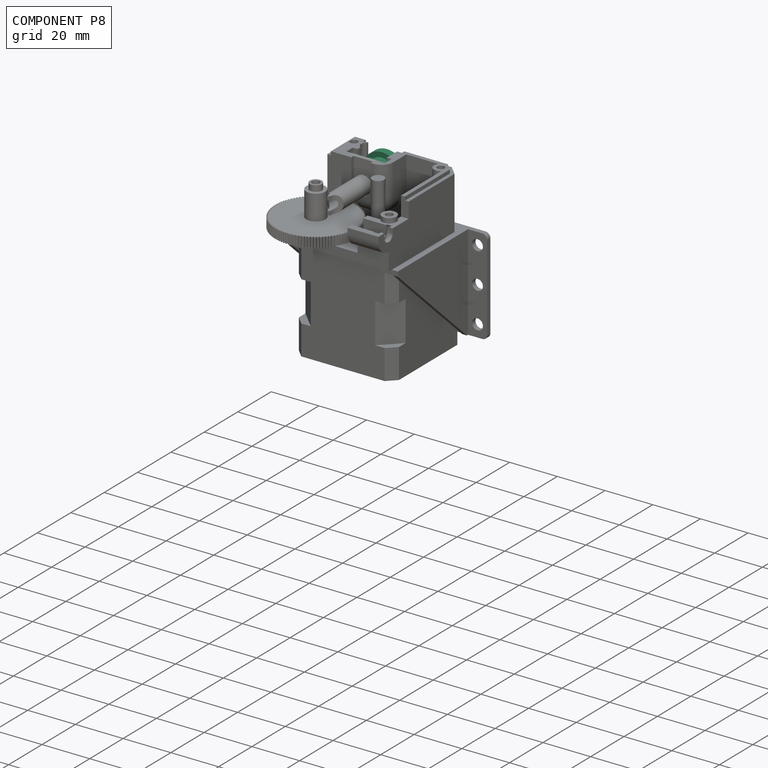
[diagram: component P8 — assembled]
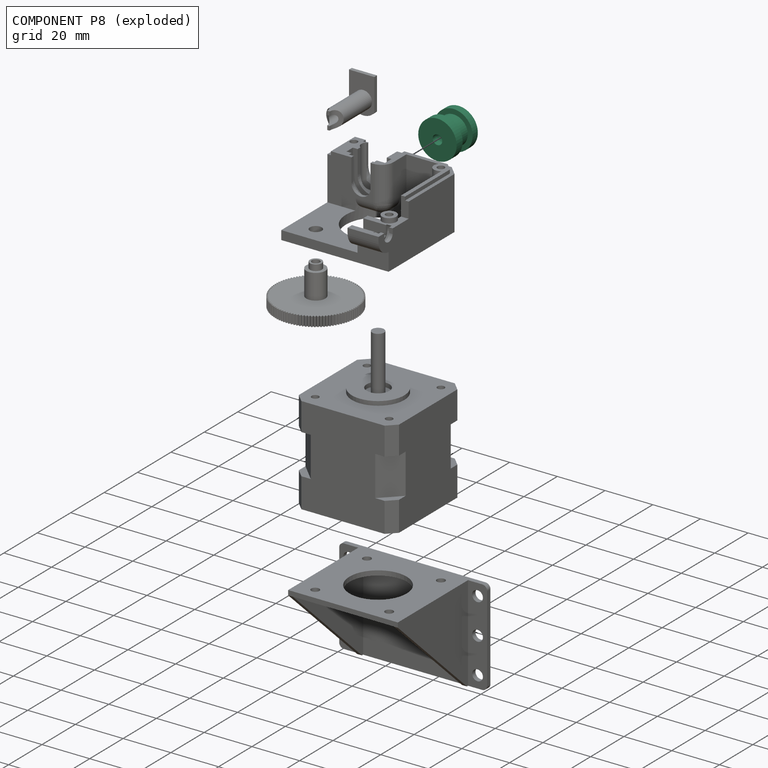
[diagram: component P8 — exploded]
COMPONENT P8 — recipe-attached (CADFS 00519381, mesh-verified: the recipe's output STEP matches this component's geometry to below the mesh-comparison resolution (tessellation chordal tolerance ~0.041 mm)).
Held by: PLANAR mate "Planar 1" to P12; CYLINDRICAL mate "Cylindrical 1" to P12; CYLINDRICAL mate "Cylindrical 1" to P12; PLANAR mate "Planar 1" to P12.
Construction recipe (FeatureScript — the CAD program that rebuilds this solid; sketch coordinates are in the units given by the * unit suffixes, e.g. mm):

FeatureScript 1511;
import(path : "onshape/std/geometry.fs", version : "1511.0");
import(path : "onshape/std/common.fs", version : "1511.0");
const mm = millimeter;
const VERTEX = EntityType.VERTEX;
const EDGE = EntityType.EDGE;
const FACE = EntityType.FACE;
const BODY = EntityType.BODY;
function v(x, y){return vector(x, y);}
function OD(order){return orderDisambiguation(order);}
function OSD(set){return originalSetDisambiguation(set);}
function TD(topology){return topologyDisambiguation(topology);}
function TDD(query){return trueDependencyDisambiguation(query);}
function sQuery(a, b, c) {return sketchEntityQuery(a, b, c);}

annotation { "Feature Type Name" : "Feature", "Feature Type Description" : "" }
export const myFeature = defineFeature(function(context is Context, id is Id, definition is map)
    precondition{}
    {
        {
            var Q0;
            Q0=qCreatedBy(makeId("Top.planeOp"),FACE);
            var sketch = newSketch(context, id + "F0", { "sketchPlane" : qUnion([Q0])});
            skCircle(sketch, "E0", {"center": v(0, 0) * mm, "radius": 8.05 * mm});
            skSolve(sketch);
        }
        {
            var Q0;
            Q0 = qSketchRegion(id + "F0", true);
            extrude(context, id + "F1", {"entities" : qUnion([Q0]), "depth" : 3.6 * mm, "offsetDistance" : 25 * mm});
        }
        {
            var Q0;
            Q0=makeQuery(id+"F1.opExtrude","CAP_FACE",FACE,{"disambiguationData":[OSD([sQuery(id+"F0.wireOp",EDGE,"E0")])],"isStart":false});
            var sketch = newSketch(context, id + "F2", { "sketchPlane" : qUnion([Q0])});
            skCircle(sketch, "E1", {"center": v(0, 0) * mm, "radius": 6 * mm});
            skSolve(sketch);
        }
        {
            var Q0;
            Q0=makeQuery(id+"F2.imprint","IMPRINT",FACE,{"disambiguationData":[TD([[makeQuery(id+"F2.imprint","IMPRINT",EDGE,{"derivedFrom":sQuery(id+"F2.wireOp",EDGE,"E1")}),1.0]])]});
            extrude(context, id + "F3", {"entities" : qUnion([Q0]), "operationType" : NewBodyOperationType.ADD, "depth" : 6 * mm, "offsetDistance" : 25 * mm});
        }
        {
            var Q0;
            Q0=makeQuery(id+"F3.opExtrude","CAP_FACE",FACE,{"disambiguationData":[OSD([sQuery(id+"F2.wireOp",EDGE,"E1")])],"isStart":false});
            var sketch = newSketch(context, id + "F4", { "sketchPlane" : qUnion([Q0])});
            skCircle(sketch, "E2", {"center": v(0, 0) * mm, "radius": 8.05 * mm});
            skSolve(sketch);
        }
        {
            var Q0;
            Q0 = qSketchRegion(id + "F4", true);
            extrude(context, id + "F5", {"entities" : qUnion([Q0]), "operationType" : NewBodyOperationType.ADD, "depth" : 3.1 * mm, "offsetDistance" : 25 * mm});
        }
        {
            var Q0;
            Q0=makeQuery(id+"F5.opExtrude","CAP_FACE",FACE,{"disambiguationData":[OSD([sQuery(id+"F4.wireOp",EDGE,"E2")])],"isStart":false});
            var sketch = newSketch(context, id + "F6", { "sketchPlane" : qUnion([Q0])});
            skCircle(sketch, "E3", {"center": v(0, 0) * mm, "radius": 5 * mm});
            skSolve(sketch);
        }
        {
            var Q0;
            Q0 = qSketchRegion(id + "F6", true);
            extrude(context, id + "F7", {"entities" : qUnion([Q0]), "operationType" : NewBodyOperationType.ADD, "depth" : 2.5 * mm, "offsetDistance" : 25 * mm});
        }
        {
            var Q0;
            Q0=makeQuery(id+"F1.opExtrude","CAP_FACE",FACE,{"disambiguationData":[OSD([sQuery(id+"F0.wireOp",EDGE,"E0")])],"isStart":true});
            var sketch = newSketch(context, id + "F8", { "sketchPlane" : qUnion([Q0])});
            skCircle(sketch, "E4", {"center": v(0, 0) * mm, "radius": 2 * mm});
            skSolve(sketch);
        }
        {
            var Q0;
            Q0 = qSketchRegion(id + "F8", true);
            extrude(context, id + "F9", {"entities" : qUnion([Q0]), "operationType" : NewBodyOperationType.REMOVE, "endBound" : BoundingType.THROUGH_ALL, "oppositeDirection" : true, "depth" : 25 * mm, "offsetDistance" : 25 * mm});
        }
    });
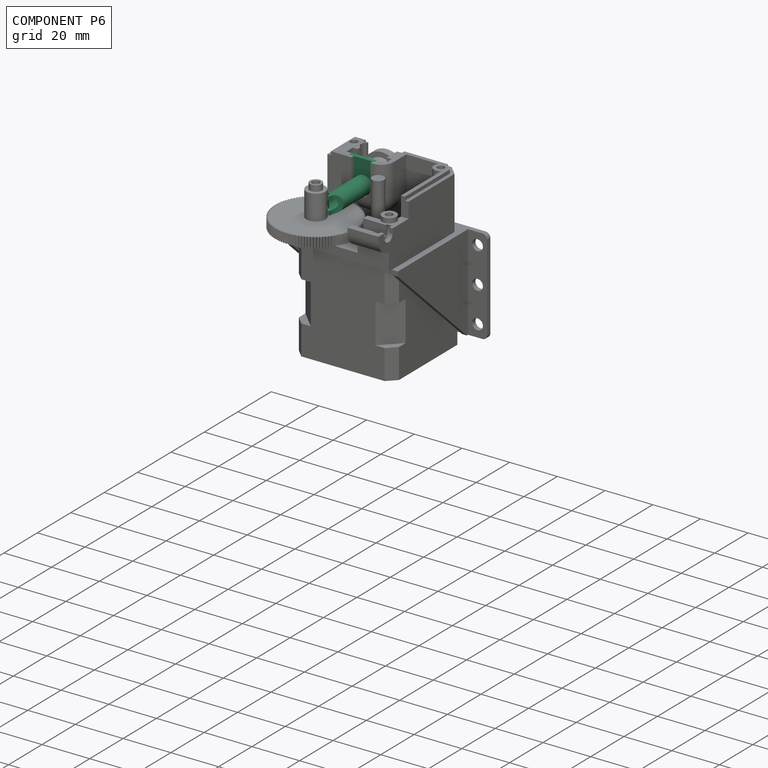
[diagram: component P6 — assembled]
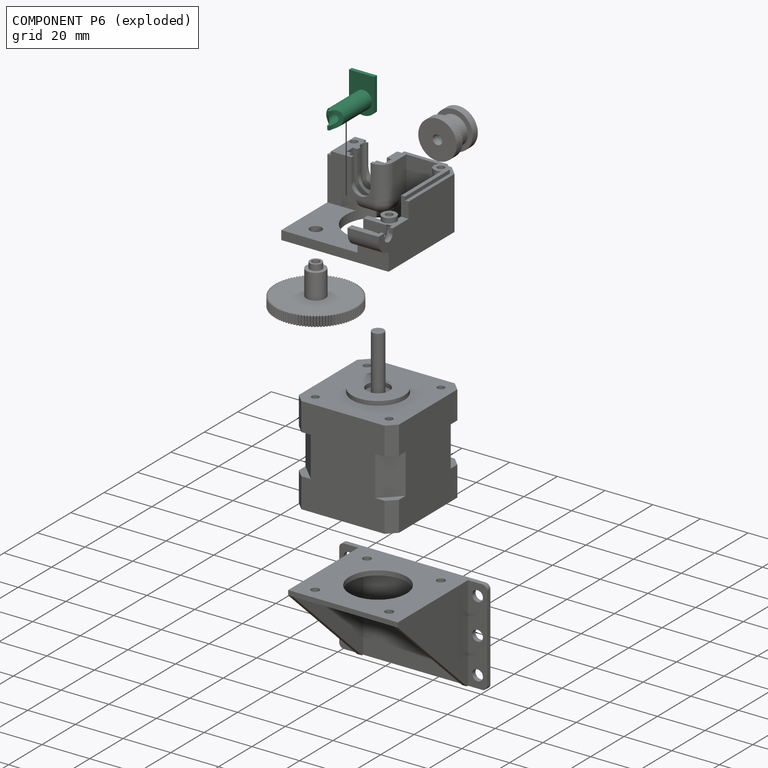
[diagram: component P6 — exploded]
COMPONENT P6 — recipe-attached (CADFS 00519382, mesh-verified: the recipe's output STEP matches this component's geometry to below the mesh-comparison resolution (tessellation chordal tolerance ~0.0442 mm)).
Held by: PARALLEL mate "Parallel 1" to P4; CYLINDRICAL mate "Cylindrical 3" to P12; PLANAR mate "Planar 3" to P12; PLANAR mate "Planar 3" to P12; CYLINDRICAL mate "Cylindrical 3" to P12; PARALLEL mate "Parallel 1" to P4.
Construction recipe (FeatureScript — the CAD program that rebuilds this solid; sketch coordinates are in the units given by the * unit suffixes, e.g. mm):

FeatureScript 1511;
import(path : "onshape/std/geometry.fs", version : "1511.0");
import(path : "onshape/std/common.fs", version : "1511.0");
const mm = millimeter;
const VERTEX = EntityType.VERTEX;
const EDGE = EntityType.EDGE;
const FACE = EntityType.FACE;
const BODY = EntityType.BODY;
function v(x, y){return vector(x, y);}
function OD(order){return orderDisambiguation(order);}
function OSD(set){return originalSetDisambiguation(set);}
function TD(topology){return topologyDisambiguation(topology);}
function TDD(query){return trueDependencyDisambiguation(query);}
function sQuery(a, b, c) {return sketchEntityQuery(a, b, c);}

annotation { "Feature Type Name" : "Feature", "Feature Type Description" : "" }
export const myFeature = defineFeature(function(context is Context, id is Id, definition is map)
    precondition{}
    {
        {
            var Q0;
            Q0=qCreatedBy(makeId("Top.planeOp"),FACE);
            var sketch = newSketch(context, id + "F0", { "sketchPlane" : qUnion([Q0])});
            skArc(sketch, "E0", {"start": v(-4.6, -3.85) * mm, "mid": v(2.05, -5.64) * mm, "end": v(6, 0) * mm});
            skLineSegment(sketch, "E1", {"start": v(6, 0) * mm, "end": v(6, 9.8) * mm});
            skLineSegment(sketch, "E2", {"start": v(6, 9.8) * mm, "end": v(-4.6, 9.8) * mm});
            skLineSegment(sketch, "E3", {"start": v(-4.6, 9.8) * mm, "end": v(-4.6, -3.85) * mm});
            skSolve(sketch);
        }
        {
            var Q0;
            Q0 = qSketchRegion(id + "F0", true);
            extrude(context, id + "F1", {"entities" : qUnion([Q0]), "depth" : 1.6 * mm, "offsetDistance" : 25 * mm});
        }
        {
            var Q0;
            Q0=makeQuery(id+"F1.opExtrude","CAP_FACE",FACE,{"disambiguationData":[OSD([sQuery(id+"F0.wireOp",EDGE,"E0"),sQuery(id+"F0.wireOp",EDGE,"E1"),sQuery(id+"F0.wireOp",EDGE,"E2"),sQuery(id+"F0.wireOp",EDGE,"E3")])],"isStart":true});
            var sketch = newSketch(context, id + "F2", { "sketchPlane" : qUnion([Q0])});
            skCircle(sketch, "E4", {"center": v(0, 0) * mm, "radius": 3.65 * mm});
            skSolve(sketch);
        }
        {
            var Q0;
            Q0 = qSketchRegion(id + "F2", true);
            extrude(context, id + "F3", {"entities" : qUnion([Q0]), "operationType" : NewBodyOperationType.ADD, "depth" : (22.5 - 1.6) * mm, "offsetDistance" : 25 * mm});
        }
        {
            var Q0;
            Q0=qCreatedBy(makeId("Front.planeOp"),FACE);
            var sketch = newSketch(context, id + "F4", { "sketchPlane" : qUnion([Q0])});
            skCircle(sketch, "E5", {"center": v(4.5, -20.9) * mm, "radius": 4 * mm});
            skCircle(sketch, "E6", {"center": v(-4.5, -20.9) * mm, "radius": 4 * mm});
            skSolve(sketch);
        }
        {
            var Q0;
            Q0 = qSketchRegion(id + "F4", true);
            extrude(context, id + "F5", {"entities" : qUnion([Q0]), "operationType" : NewBodyOperationType.REMOVE, "oppositeDirection" : true, "depth" : 25 * mm, "offsetDistance" : 25 * mm, "hasSecondDirection" : true, "secondDirectionOppositeDirection" : false, "secondDirectionDepth" : 25 * mm});
        }
        {
            var Q0;
            Q0=makeQuery(id+"F1.opExtrude","CAP_FACE",FACE,{"disambiguationData":[OSD([sQuery(id+"F0.wireOp",EDGE,"E0"),sQuery(id+"F0.wireOp",EDGE,"E1"),sQuery(id+"F0.wireOp",EDGE,"E2"),sQuery(id+"F0.wireOp",EDGE,"E3")])],"isStart":false});
            var sketch = newSketch(context, id + "F6", { "sketchPlane" : qUnion([Q0])});
            skCircle(sketch, "E7", {"center": v(0, 0) * mm, "radius": 2 * mm});
            skSolve(sketch);
        }
        {
            var Q0;
            Q0 = qSketchRegion(id + "F6", true);
            extrude(context, id + "F7", {"entities" : qUnion([Q0]), "operationType" : NewBodyOperationType.REMOVE, "endBound" : BoundingType.THROUGH_ALL, "oppositeDirection" : true, "depth" : 25 * mm, "offsetDistance" : 25 * mm});
        }
    });
